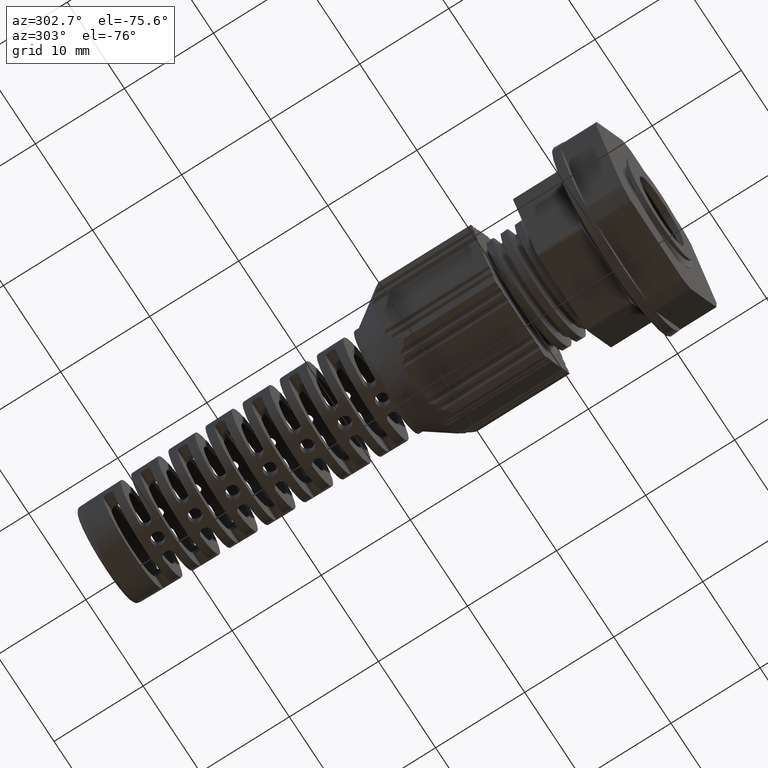
[diagram: clean part render]
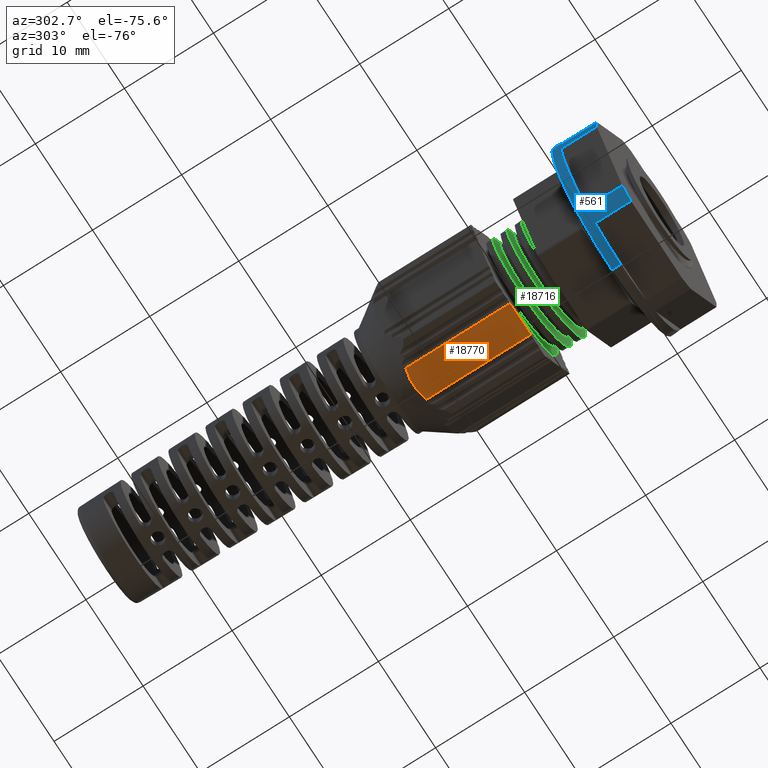
[diagram: same view with three faces highlighted in distinct colors, each labeled with its STEP entity id]
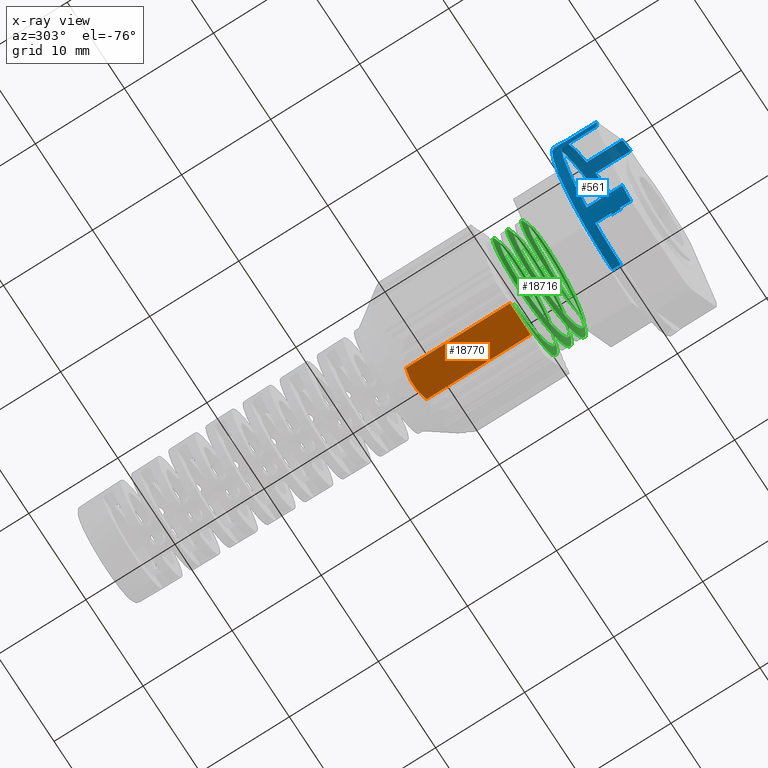
[diagram: x-ray of the same camera — body ghosted, the three highlighted faces saturated]
A machine part, auxiliary view with three faces highlighted in distinct colors.
The next image is the same camera in x-ray (body ghosted, the three faces saturated) — at least one of them is partly hidden behind the body in this view.
Their STEP definitions:

[orange] entity #18770 — the highlighted planar face has unit normal (0, 0, -1).
#89 = ORIENTED_EDGE ( 'NONE', *, *, #18681, .F. ) ;
#1162 = VERTEX_POINT ( 'NONE', #8406 ) ;
#1180 = VERTEX_POINT ( 'NONE', #8395 ) ;
#1183 = VERTEX_POINT ( 'NONE', #8409 ) ;
#1197 = VERTEX_POINT ( 'NONE', #8434 ) ;
#1203 = VERTEX_POINT ( 'NONE', #8469 ) ;
#1206 = VERTEX_POINT ( 'NONE', #8416 ) ;
#2070 = EDGE_LOOP ( 'NONE', ( #11971, #89, #11972, #19106, #11955, #19103 ) ) ;
#5319 = EDGE_CURVE ( 'NONE', #1206, #1203, #8913, .T. ) ;
#8395 = CARTESIAN_POINT ( 'NONE',  ( -1.808929889471766700, 12.91836690530706700, -7.500001119820728600 ) ) ;
#8406 = CARTESIAN_POINT ( 'NONE',  ( -1.809179411989011200, 1.733408865910367500, -7.500000497725707800 ) ) ;
#8409 = CARTESIAN_POINT ( 'NONE',  ( 1.809179412047081000, 1.733404800287774400, -7.500001990902817700 ) ) ;
#8416 = CARTESIAN_POINT ( 'NONE',  ( 1.809201712634430000, 1.233406263977599600, -7.500001989908184900 ) ) ;
#8434 = CARTESIAN_POINT ( 'NONE',  ( 1.808929835465607800, 12.91836692362644200, -7.500001119784929700 ) ) ;
#8469 = CARTESIAN_POINT ( 'NONE',  ( -1.809201712503602800, 1.233406263480285600, -7.500000994954100400 ) ) ;
#8913 = LINE ( 'NONE', #8935, #18016 ) ;
#8933 = DIRECTION ( 'NONE',  ( -1.000000000000000000, 0.0000000000000000000, -2.003086131649546900E-016 ) ) ;
#8935 = CARTESIAN_POINT ( 'NONE',  ( -4.330127018922188300, 1.233406263480285600, -7.500000000000000000 ) ) ;
#10750 = B_SPLINE_CURVE_WITH_KNOTS ( 'NONE', 3,
 ( #12922, #12965, #12976, #12973 ),
 .UNSPECIFIED., .F., .F.,
 ( 4, 4 ),
 ( 0.0000000000000000000, 1.000000000000000000 ),
 .UNSPECIFIED. ) ;
#10766 = B_SPLINE_CURVE_WITH_KNOTS ( 'NONE', 3,
 ( #14050, #14073, #14076, #14040, #14060, #14046 ),
 .UNSPECIFIED., .F., .F.,
 ( 4, 2, 4 ),
 ( 2.436387926220048300E-011, 0.001833991576412653400, 0.003667983128461427800 ),
 .UNSPECIFIED. ) ;
#11955 = ORIENTED_EDGE ( 'NONE', *, *, #5319, .T. ) ;
#11971 = ORIENTED_EDGE ( 'NONE', *, *, #18589, .T. ) ;
#11972 = ORIENTED_EDGE ( 'NONE', *, *, #18625, .T. ) ;
#12922 = CARTESIAN_POINT ( 'NONE',  ( 1.809201712634430000, 1.233406263977599600, -7.500001989908184900 ) ) ;
#12946 = LINE ( 'NONE', #12993, #13040 ) ;
#12965 = CARTESIAN_POINT ( 'NONE',  ( 1.809194279105348400, 1.400072442416115300, -7.500001990571273100 ) ) ;
#12973 = CARTESIAN_POINT ( 'NONE',  ( 1.809179412047081000, 1.733404800287774400, -7.500001990902817700 ) ) ;
#12976 = CARTESIAN_POINT ( 'NONE',  ( 1.809186845576214800, 1.566738621351944700, -7.500001990902817700 ) ) ;
#12983 = DIRECTION ( 'NONE',  ( 0.0000000000000000000, 1.000000000000000000, 0.0000000000000000000 ) ) ;
#12993 = CARTESIAN_POINT ( 'NONE',  ( -1.809179412047046400, 47.73795169273444100, -7.500000995451415500 ) ) ;
#13018 = VECTOR ( 'NONE', #13839, 1000.000000000000000 ) ;
#13040 = VECTOR ( 'NONE', #12983, 1000.000000000000000 ) ;
#13092 = VECTOR ( 'NONE', #13796, 1000.000000000000200 ) ;
#13234 = AXIS2_PLACEMENT_3D ( 'NONE', #14814, #14806, #14826 ) ;
#13755 = LINE ( 'NONE', #13757, #13018 ) ;
#13757 = CARTESIAN_POINT ( 'NONE',  ( 1.809179412047081000, 47.73795169273444100, -7.500000995451408400 ) ) ;
#13787 = LINE ( 'NONE', #13794, #13092 ) ;
#13794 = CARTESIAN_POINT ( 'NONE',  ( -1.809201712414850900, 1.233406263480285600, -7.499999999999999100 ) ) ;
#13796 = DIRECTION ( 'NONE',  ( 4.460073556472583500E-005, 0.9999999990053871600, 0.0000000000000000000 ) ) ;
#13839 = DIRECTION ( 'NONE',  ( -0.0000000000000000000, -1.000000000000000000, -0.0000000000000000000 ) ) ;
#14040 = CARTESIAN_POINT ( 'NONE',  ( -0.6187228311952591700, 13.22713231890776500, -7.499999999999997300 ) ) ;
#14046 = CARTESIAN_POINT ( 'NONE',  ( -1.808929889471766700, 12.91836690530706700, -7.500001119820728600 ) ) ;
#14050 = CARTESIAN_POINT ( 'NONE',  ( 1.808929835465607800, 12.91836692362644200, -7.500001119784929700 ) ) ;
#14060 = CARTESIAN_POINT ( 'NONE',  ( -1.222030187418772000, 13.11584815361887400, -7.500000000000000000 ) ) ;
#14073 = CARTESIAN_POINT ( 'NONE',  ( 1.222138014660427300, 13.11581201771485700, -7.500000459161998200 ) ) ;
#14076 = CARTESIAN_POINT ( 'NONE',  ( 0.6208922277658602800, 13.22687503655222600, -7.499999999999998200 ) ) ;
#14793 = FACE_OUTER_BOUND ( 'NONE', #2070, .T. ) ;
#14805 = PLANE ( 'NONE',  #13234 ) ;
#14806 = DIRECTION ( 'NONE',  ( 2.003086131649546900E-016, 0.0000000000000000000, -1.000000000000000000 ) ) ;
#14814 = CARTESIAN_POINT ( 'NONE',  ( -4.330127018922188300, 47.73795169273444100, -7.500000000000000000 ) ) ;
#14826 = DIRECTION ( 'NONE',  ( -1.000000000000000000, 0.0000000000000000000, -2.003086131649546900E-016 ) ) ;
#18016 = VECTOR ( 'NONE', #8933, 1000.000000000000000 ) ;
#18588 = EDGE_CURVE ( 'NONE', #1206, #1183, #10750, .T. ) ;
#18589 = EDGE_CURVE ( 'NONE', #1162, #1180, #12946, .T. ) ;
#18625 = EDGE_CURVE ( 'NONE', #1197, #1183, #13755, .T. ) ;
#18635 = EDGE_CURVE ( 'NONE', #1203, #1162, #13787, .T. ) ;
#18681 = EDGE_CURVE ( 'NONE', #1197, #1180, #10766, .T. ) ;
#18770 = ADVANCED_FACE ( 'NONE', ( #14793 ), #14805, .T. ) ;
#19103 = ORIENTED_EDGE ( 'NONE', *, *, #18635, .T. ) ;
#19106 = ORIENTED_EDGE ( 'NONE', *, *, #18588, .F. ) ;

[blue] entity #561 — the highlighted cylindrical surface (partial cylindrical patch) has radius 10.5 mm, axis along (0, 1, 0).
#561 = ADVANCED_FACE ( 'NONE', ( #5122 ), #5123, .T. ) ;
#2079 = EDGE_LOOP ( 'NONE', ( #19878, #19852, #19842, #19879, #19854, #19880, #19818, #19935, #19900, #19939, #19891, #19917, #19925, #19910, #19934, #19890 ) ) ;
#5122 = FACE_OUTER_BOUND ( 'NONE', #2079, .T. ) ;
#5123 = CYLINDRICAL_SURFACE ( 'NONE', #17299, 10.50000000000000000 ) ;
#5134 = CARTESIAN_POINT ( 'NONE',  ( 3.469446951953614200E-015, -10.06608847983449600, 0.0000000000000000000 ) ) ;
#5149 = DIRECTION ( 'NONE',  ( 0.0000000000000000000, 0.0000000000000000000, 1.000000000000000000 ) ) ;
#5153 = DIRECTION ( 'NONE',  ( 0.0000000000000000000, 1.000000000000000000, 0.0000000000000000000 ) ) ;
#10247 = VECTOR ( 'NONE', #11001, 1000.000000000000000 ) ;
#10337 = VECTOR ( 'NONE', #11159, 1000.000000000000000 ) ;
#10984 = LINE ( 'NONE', #10989, #10247 ) ;
#10989 = CARTESIAN_POINT ( 'NONE',  ( 4.755326091058335600E-015, -10.06608847983449600, -10.50000000000000000 ) ) ;
#11001 = DIRECTION ( 'NONE',  ( 0.0000000000000000000, 1.000000000000000000, 0.0000000000000000000 ) ) ;
#11143 = CARTESIAN_POINT ( 'NONE',  ( 3.469446951953614200E-015, -10.06608847983449600, 10.50000000000000000 ) ) ;
#11158 = LINE ( 'NONE', #11143, #10337 ) ;
#11159 = DIRECTION ( 'NONE',  ( 0.0000000000000000000, 1.000000000000000000, 0.0000000000000000000 ) ) ;
#13320 = CIRCLE ( 'NONE', #13348, 10.50000000000000000 ) ;
#13333 = AXIS2_PLACEMENT_3D ( 'NONE', #16006, #16022, #15987 ) ;
#13348 = AXIS2_PLACEMENT_3D ( 'NONE', #15521, #15554, #15564 ) ;
#13357 = CIRCLE ( 'NONE', #13333, 10.50000000000000000 ) ;
#13366 = AXIS2_PLACEMENT_3D ( 'NONE', #16198, #16170, #16188 ) ;
#13377 = VECTOR ( 'NONE', #16035, 1000.000000000000000 ) ;
#13392 = AXIS2_PLACEMENT_3D ( 'NONE', #16183, #16205, #16177 ) ;
#13393 = VECTOR ( 'NONE', #16283, 1000.000000000000000 ) ;
#13400 = CIRCLE ( 'NONE', #13411, 10.50000000000000000 ) ;
#13411 = AXIS2_PLACEMENT_3D ( 'NONE', #16160, #16147, #16126 ) ;
#13421 = CIRCLE ( 'NONE', #13366, 10.50000000000000000 ) ;
#13424 = CIRCLE ( 'NONE', #13392, 10.50000000000000000 ) ;
#13430 = CIRCLE ( 'NONE', #13462, 10.50000000000000000 ) ;
#13433 = VECTOR ( 'NONE', #16329, 1000.000000000000000 ) ;
#13434 = VECTOR ( 'NONE', #16319, 1000.000000000000000 ) ;
#13439 = AXIS2_PLACEMENT_3D ( 'NONE', #16351, #16321, #16346 ) ;
#13448 = VECTOR ( 'NONE', #16227, 1000.000000000000000 ) ;
#13457 = CIRCLE ( 'NONE', #13475, 10.50000000000000000 ) ;
#13460 = VECTOR ( 'NONE', #16434, 1000.000000000000000 ) ;
#13462 = AXIS2_PLACEMENT_3D ( 'NONE', #16265, #16297, #16280 ) ;
#13475 = AXIS2_PLACEMENT_3D ( 'NONE', #16334, #16338, #16315 ) ;
#13480 = CIRCLE ( 'NONE', #13439, 10.50000000000000000 ) ;
#15521 = CARTESIAN_POINT ( 'NONE',  ( 3.469446951953614200E-015, -10.06608847983449600, 0.0000000000000000000 ) ) ;
#15554 = DIRECTION ( 'NONE',  ( 0.0000000000000000000, 1.000000000000000000, 0.0000000000000000000 ) ) ;
#15564 = DIRECTION ( 'NONE',  ( 0.0000000000000000000, 0.0000000000000000000, 1.000000000000000000 ) ) ;
#15987 = DIRECTION ( 'NONE',  ( 0.0000000000000000000, 0.0000000000000000000, 1.000000000000000000 ) ) ;
#16006 = CARTESIAN_POINT ( 'NONE',  ( 3.469446951953614200E-015, -9.066088479834494500, 0.0000000000000000000 ) ) ;
#16022 = DIRECTION ( 'NONE',  ( 0.0000000000000000000, 1.000000000000000000, 0.0000000000000000000 ) ) ;
#16024 = LINE ( 'NONE', #16043, #13377 ) ;
#16035 = DIRECTION ( 'NONE',  ( -0.0000000000000000000, -1.000000000000000000, -0.0000000000000000000 ) ) ;
#16043 = CARTESIAN_POINT ( 'NONE',  ( -4.472135954999539600, -10.06608847983449600, -9.500000000000017800 ) ) ;
#16126 = DIRECTION ( 'NONE',  ( 0.0000000000000000000, 0.0000000000000000000, 1.000000000000000000 ) ) ;
#16147 = DIRECTION ( 'NONE',  ( 0.0000000000000000000, 1.000000000000000000, 0.0000000000000000000 ) ) ;
#16160 = CARTESIAN_POINT ( 'NONE',  ( 3.469446951953614200E-015, -10.06608847983449600, 0.0000000000000000000 ) ) ;
#16170 = DIRECTION ( 'NONE',  ( 0.0000000000000000000, 1.000000000000000000, 0.0000000000000000000 ) ) ;
#16177 = DIRECTION ( 'NONE',  ( 0.0000000000000000000, 0.0000000000000000000, 1.000000000000000000 ) ) ;
#16183 = CARTESIAN_POINT ( 'NONE',  ( 3.469446951953614200E-015, -10.06608847983449600, 0.0000000000000000000 ) ) ;
#16188 = DIRECTION ( 'NONE',  ( 0.0000000000000000000, 0.0000000000000000000, 1.000000000000000000 ) ) ;
#16198 = CARTESIAN_POINT ( 'NONE',  ( 3.469446951953614200E-015, -10.06608847983449600, 0.0000000000000000000 ) ) ;
#16205 = DIRECTION ( 'NONE',  ( 0.0000000000000000000, 1.000000000000000000, 0.0000000000000000000 ) ) ;
#16224 = LINE ( 'NONE', #16243, #13448 ) ;
#16227 = DIRECTION ( 'NONE',  ( -0.0000000000000000000, -1.000000000000000000, -0.0000000000000000000 ) ) ;
#16243 = CARTESIAN_POINT ( 'NONE',  ( -5.991173358452397400, -10.06608847983449600, 8.622983346207401900 ) ) ;
#16265 = CARTESIAN_POINT ( 'NONE',  ( 3.469446951953614200E-015, -14.06608847983449600, 0.0000000000000000000 ) ) ;
#16275 = CARTESIAN_POINT ( 'NONE',  ( -10.46330931345195500, -10.06608847983449600, -0.8770166537925892000 ) ) ;
#16280 = DIRECTION ( 'NONE',  ( 0.0000000000000000000, 0.0000000000000000000, 1.000000000000000000 ) ) ;
#16283 = DIRECTION ( 'NONE',  ( -0.0000000000000000000, -1.000000000000000000, -0.0000000000000000000 ) ) ;
#16297 = DIRECTION ( 'NONE',  ( -0.0000000000000000000, -1.000000000000000000, -0.0000000000000000000 ) ) ;
#16310 = LINE ( 'NONE', #16275, #13393 ) ;
#16315 = DIRECTION ( 'NONE',  ( 8.881784197001252300E-016, 0.0000000000000000000, 1.000000000000000000 ) ) ;
#16319 = DIRECTION ( 'NONE',  ( 0.0000000000000000000, 1.000000000000000000, 0.0000000000000000000 ) ) ;
#16321 = DIRECTION ( 'NONE',  ( -0.0000000000000000000, -1.000000000000000000, -0.0000000000000000000 ) ) ;
#16329 = DIRECTION ( 'NONE',  ( 0.0000000000000000000, 1.000000000000000000, 0.0000000000000000000 ) ) ;
#16334 = CARTESIAN_POINT ( 'NONE',  ( 3.469446951953614200E-015, -14.06608847983449600, 0.0000000000000000000 ) ) ;
#16337 = LINE ( 'NONE', #16343, #13433 ) ;
#16338 = DIRECTION ( 'NONE',  ( -0.0000000000000000000, -1.000000000000000000, -0.0000000000000000000 ) ) ;
#16343 = CARTESIAN_POINT ( 'NONE',  ( -10.46330931345195100, -10.06608847983449600, 0.8770166537926132900 ) ) ;
#16344 = LINE ( 'NONE', #16355, #13434 ) ;
#16346 = DIRECTION ( 'NONE',  ( 0.0000000000000000000, 0.0000000000000000000, 1.000000000000000000 ) ) ;
#16351 = CARTESIAN_POINT ( 'NONE',  ( 3.469446951953614200E-015, -14.06608847983449600, 0.0000000000000000000 ) ) ;
#16355 = CARTESIAN_POINT ( 'NONE',  ( -5.991173358452360100, -10.06608847983449600, -8.622983346207426800 ) ) ;
#16434 = DIRECTION ( 'NONE',  ( 0.0000000000000000000, 1.000000000000000000, 0.0000000000000000000 ) ) ;
#16439 = CARTESIAN_POINT ( 'NONE',  ( -4.472135954999544100, -10.06608847983449600, 9.500000000000016000 ) ) ;
#16453 = LINE ( 'NONE', #16439, #13460 ) ;
#16481 = CARTESIAN_POINT ( 'NONE',  ( -10.46330931345195100, -14.06608847983449600, 0.8770166537926155100 ) ) ;
#16738 = CARTESIAN_POINT ( 'NONE',  ( 3.469446951953614200E-015, -10.06608847983449600, 10.50000000000000000 ) ) ;
#16745 = CARTESIAN_POINT ( 'NONE',  ( -4.472135954999541400, -10.06608847983449600, -9.500000000000016000 ) ) ;
#16789 = CARTESIAN_POINT ( 'NONE',  ( -10.46330931345194900, -10.06608847983449600, 0.8770166537926205000 ) ) ;
#16803 = CARTESIAN_POINT ( 'NONE',  ( -5.991173358452364500, -10.06608847983449600, -8.622983346207425000 ) ) ;
#16818 = CARTESIAN_POINT ( 'NONE',  ( -10.46330931345195500, -14.06608847983449600, -0.8770166537925866400 ) ) ;
#16823 = CARTESIAN_POINT ( 'NONE',  ( -5.991173358452400100, -10.06608847983449600, 8.622983346207400100 ) ) ;
#16825 = CARTESIAN_POINT ( 'NONE',  ( 4.755326091058335600E-015, -9.066088479834494500, -10.50000000000000000 ) ) ;
#16827 = CARTESIAN_POINT ( 'NONE',  ( -5.991173358452359200, -14.06608847983449600, -8.622983346207428600 ) ) ;
#16829 = CARTESIAN_POINT ( 'NONE',  ( -4.472135954999544100, -10.06608847983449600, 9.500000000000016000 ) ) ;
#16836 = CARTESIAN_POINT ( 'NONE',  ( -10.46330931345195300, -10.06608847983449600, -0.8770166537925886400 ) ) ;
#16859 = CARTESIAN_POINT ( 'NONE',  ( 3.469446951953614200E-015, -9.066088479834494500, 10.50000000000000000 ) ) ;
#16864 = CARTESIAN_POINT ( 'NONE',  ( 4.755326091058335600E-015, -10.06608847983449600, -10.50000000000000000 ) ) ;
#16865 = CARTESIAN_POINT ( 'NONE',  ( -4.472135954999541400, -14.06608847983449600, -9.500000000000016000 ) ) ;
#16871 = CARTESIAN_POINT ( 'NONE',  ( -5.991173358452396500, -14.06608847983449600, 8.622983346207403700 ) ) ;
#16890 = CARTESIAN_POINT ( 'NONE',  ( -4.472135954999544100, -14.06608847983449600, 9.500000000000016000 ) ) ;
#17299 = AXIS2_PLACEMENT_3D ( 'NONE', #5134, #5153, #5149 ) ;
#17589 = EDGE_CURVE ( 'NONE', #20477, #20423, #10984, .T. ) ;
#17627 = EDGE_CURVE ( 'NONE', #20388, #20487, #11158, .T. ) ;
#18870 = EDGE_CURVE ( 'NONE', #20418, #20436, #13320, .T. ) ;
#18922 = EDGE_CURVE ( 'NONE', #20423, #20487, #13357, .T. ) ;
#18939 = EDGE_CURVE ( 'NONE', #20411, #20505, #16024, .T. ) ;
#18959 = EDGE_CURVE ( 'NONE', #20443, #20388, #13400, .T. ) ;
#18966 = EDGE_CURVE ( 'NONE', #20477, #20411, #13421, .T. ) ;
#18971 = EDGE_CURVE ( 'NONE', #20426, #20416, #13424, .T. ) ;
#18984 = EDGE_CURVE ( 'NONE', #20416, #20482, #16224, .T. ) ;
#18990 = EDGE_CURVE ( 'NONE', #20436, #20469, #16310, .T. ) ;
#19000 = EDGE_CURVE ( 'NONE', #20414, #20505, #13430, .T. ) ;
#19003 = EDGE_CURVE ( 'NONE', #19140, #20469, #13480, .T. ) ;
#19006 = EDGE_CURVE ( 'NONE', #19140, #20426, #16337, .T. ) ;
#19007 = EDGE_CURVE ( 'NONE', #20484, #20482, #13457, .T. ) ;
#19008 = EDGE_CURVE ( 'NONE', #20414, #20418, #16344, .T. ) ;
#19029 = EDGE_CURVE ( 'NONE', #20484, #20443, #16453, .T. ) ;
#19140 = VERTEX_POINT ( 'NONE', #16481 ) ;
#19818 = ORIENTED_EDGE ( 'NONE', *, *, #18990, .T. ) ;
#19842 = ORIENTED_EDGE ( 'NONE', *, *, #18939, .T. ) ;
#19852 = ORIENTED_EDGE ( 'NONE', *, *, #18966, .T. ) ;
#19854 = ORIENTED_EDGE ( 'NONE', *, *, #19008, .T. ) ;
#19878 = ORIENTED_EDGE ( 'NONE', *, *, #17589, .F. ) ;
#19879 = ORIENTED_EDGE ( 'NONE', *, *, #19000, .F. ) ;
#19880 = ORIENTED_EDGE ( 'NONE', *, *, #18870, .T. ) ;
#19890 = ORIENTED_EDGE ( 'NONE', *, *, #18922, .F. ) ;
#19891 = ORIENTED_EDGE ( 'NONE', *, *, #18984, .T. ) ;
#19900 = ORIENTED_EDGE ( 'NONE', *, *, #19006, .T. ) ;
#19910 = ORIENTED_EDGE ( 'NONE', *, *, #18959, .T. ) ;
#19917 = ORIENTED_EDGE ( 'NONE', *, *, #19007, .F. ) ;
#19925 = ORIENTED_EDGE ( 'NONE', *, *, #19029, .T. ) ;
#19934 = ORIENTED_EDGE ( 'NONE', *, *, #17627, .T. ) ;
#19935 = ORIENTED_EDGE ( 'NONE', *, *, #19003, .F. ) ;
#19939 = ORIENTED_EDGE ( 'NONE', *, *, #18971, .T. ) ;
#20388 = VERTEX_POINT ( 'NONE', #16738 ) ;
#20411 = VERTEX_POINT ( 'NONE', #16745 ) ;
#20414 = VERTEX_POINT ( 'NONE', #16827 ) ;
#20416 = VERTEX_POINT ( 'NONE', #16823 ) ;
#20418 = VERTEX_POINT ( 'NONE', #16803 ) ;
#20423 = VERTEX_POINT ( 'NONE', #16825 ) ;
#20426 = VERTEX_POINT ( 'NONE', #16789 ) ;
#20436 = VERTEX_POINT ( 'NONE', #16836 ) ;
#20443 = VERTEX_POINT ( 'NONE', #16829 ) ;
#20469 = VERTEX_POINT ( 'NONE', #16818 ) ;
#20477 = VERTEX_POINT ( 'NONE', #16864 ) ;
#20482 = VERTEX_POINT ( 'NONE', #16871 ) ;
#20484 = VERTEX_POINT ( 'NONE', #16890 ) ;
#20487 = VERTEX_POINT ( 'NONE', #16859 ) ;
#20505 = VERTEX_POINT ( 'NONE', #16865 ) ;

[green] entity #18716 — the highlighted face is a freeform B-spline surface patch.
#1144 = VERTEX_POINT ( 'NONE', #8363 ) ;
#1156 = VERTEX_POINT ( 'NONE', #8392 ) ;
#1195 = VERTEX_POINT ( 'NONE', #8430 ) ;
#2263 = EDGE_LOOP ( 'NONE', ( #3815, #3832, #3814, #3823, #3835, #3828, #3821, #3844, #3810, #3795 ) ) ;
#3795 = ORIENTED_EDGE ( 'NONE', *, *, #18651, .T. ) ;
#3810 = ORIENTED_EDGE ( 'NONE', *, *, #18599, .F. ) ;
#3814 = ORIENTED_EDGE ( 'NONE', *, *, #17580, .F. ) ;
#3815 = ORIENTED_EDGE ( 'NONE', *, *, #18608, .F. ) ;
#3821 = ORIENTED_EDGE ( 'NONE', *, *, #17585, .F. ) ;
#3823 = ORIENTED_EDGE ( 'NONE', *, *, #17719, .F. ) ;
#3828 = ORIENTED_EDGE ( 'NONE', *, *, #17577, .F. ) ;
#3832 = ORIENTED_EDGE ( 'NONE', *, *, #18513, .F. ) ;
#3835 = ORIENTED_EDGE ( 'NONE', *, *, #17591, .F. ) ;
#3844 = ORIENTED_EDGE ( 'NONE', *, *, #17538, .F. ) ;
#8363 = CARTESIAN_POINT ( 'NONE',  ( 3.871792064870504600, -3.466593736519714600, -4.939629187787073100 ) ) ;
#8392 = CARTESIAN_POINT ( 'NONE',  ( -1.213182174467993600, 1.233406263480631100, -5.313255970829629900 ) ) ;
#8430 = CARTESIAN_POINT ( 'NONE',  ( 5.489578687671993000, 1.233406263480314700, -3.042241959195484600 ) ) ;
#10115 = CARTESIAN_POINT ( 'NONE',  ( -2.723343350254262800E-013, 0.3771562655286569400, 5.450000000000660100 ) ) ;
#10116 = CARTESIAN_POINT ( 'NONE',  ( 5.449999999996719200, 0.7771562655272600300, -3.747098292138625200E-012 ) ) ;
#10119 = CARTESIAN_POINT ( 'NONE',  ( -1.028488958621506200E-012, 1.177156265528714200, -5.450000000000657400 ) ) ;
#10121 = CARTESIAN_POINT ( 'NONE',  ( 3.853731957467014400, 0.5771562655272602900, 3.853731957461715500 ) ) ;
#10125 = CARTESIAN_POINT ( 'NONE',  ( 5.449999999995167600, 0.8771562655272602300, -2.257463914935753400 ) ) ;
#10133 = CARTESIAN_POINT ( 'NONE',  ( 3.853731957461715500, 0.9771562655272606500, -3.853731957467015200 ) ) ;
#10143 = CARTESIAN_POINT ( 'NONE',  ( 2.257463914934120000, 0.4771562655271576200, 5.449999999996802700 ) ) ;
#10153 = CARTESIAN_POINT ( 'NONE',  ( 5.449999999998270900, 0.6771562655272607100, 2.257463914928259400 ) ) ;
#10160 = CARTESIAN_POINT ( 'NONE',  ( 2.257463914928684400, 1.077156265527233500, -5.449999999997847200 ) ) ;
#10751 = B_SPLINE_CURVE_WITH_KNOTS ( 'NONE', 3,
 ( #12674, #12696, #12689, #12693, #12688, #12665, #12662, #12706, #12691, #12675 ),
 .UNSPECIFIED., .F., .F.,
 ( 4, 2, 2, 2, 4 ),
 ( 4.006856853386554700E-016, 0.001866126005744496100, 0.003732252011488591500, 0.005598378017232686800, 0.007464504022976782200 ),
 .UNSPECIFIED. ) ;
#10755 = B_SPLINE_CURVE_WITH_KNOTS ( 'NONE', 3,
 ( #13918, #13907, #13913, #13908, #13923, #13925, #13895, #13915, #13899, #13919, #13911, #13926 ),
 .UNSPECIFIED., .F., .F.,
 ( 4, 2, 2, 2, 2, 4 ),
 ( 1.791685997810713400E-016, 0.001889381679383765000, 0.002834072519075558100, 0.003778763358767351000, 0.005668145038150939300, 0.007557526717534526800 ),
 .UNSPECIFIED. ) ;
#10886 = CARTESIAN_POINT ( 'NONE',  ( 2.450331116587708400E-012, -0.4228437344714399100, -5.450000000000657400 ) ) ;
#10891 = CARTESIAN_POINT ( 'NONE',  ( 2.257463914931470100, -0.5228437344729423000, -5.449999999995055700 ) ) ;
#10892 = CARTESIAN_POINT ( 'NONE',  ( 3.853731957461711000, -0.6228437344727408800, -3.853731957467014800 ) ) ;
#10925 = CARTESIAN_POINT ( 'NONE',  ( -3.853731957461660400, -3.022843734472754100, 3.853731957467014400 ) ) ;
#10926 = CARTESIAN_POINT ( 'NONE',  ( -2.257463914932547100, -0.3228437344729490600, -5.449999999998364200 ) ) ;
#10930 = CARTESIAN_POINT ( 'NONE',  ( -3.853731957467014400, -3.422843734472754500, -3.853731957461660400 ) ) ;
#10932 = CARTESIAN_POINT ( 'NONE',  ( 3.853731957467013900, -1.022843734472741000, 3.853731957461711000 ) ) ;
#10933 = CARTESIAN_POINT ( 'NONE',  ( -5.449999999996680200, -3.222843734472754700, 3.786549887720714000E-012 ) ) ;
#10936 = CARTESIAN_POINT ( 'NONE',  ( -5.449999999995141800, 0.07715626552725302100, 2.257463914935769400 ) ) ;
#10937 = CARTESIAN_POINT ( 'NONE',  ( -2.257463914929878500, 0.2771562655271501100, 5.449999999996616200 ) ) ;
#10939 = CARTESIAN_POINT ( 'NONE',  ( -3.853731957461687500, 0.1771562655272528300, 3.853731957467014400 ) ) ;
#10941 = CARTESIAN_POINT ( 'NONE',  ( 2.257463914935130300, -1.122843734472780900, 5.449999999995791100 ) ) ;
#10942 = CARTESIAN_POINT ( 'NONE',  ( -5.449999999995113400, -3.122843734472754700, 2.257463914935780500 ) ) ;
#10945 = CARTESIAN_POINT ( 'NONE',  ( -3.120593273463933200, -3.466593736519715500, -4.468153715083586200 ) ) ;
#10952 = CARTESIAN_POINT ( 'NONE',  ( -3.853731957467014400, -0.2228437344727469400, -3.853731957461687500 ) ) ;
#10953 = CARTESIAN_POINT ( 'NONE',  ( 2.450331116587708400E-012, -0.4228437344714399100, -5.450000000000657400 ) ) ;
#10956 = CARTESIAN_POINT ( 'NONE',  ( 5.449999999995164000, -0.7228437344727404200, -2.257463914935756000 ) ) ;
#10957 = CARTESIAN_POINT ( 'NONE',  ( -3.514227176101668800, -3.444112391886142300, -4.193236738827478900 ) ) ;
#10959 = CARTESIAN_POINT ( 'NONE',  ( 5.390198678189174300E-013, -1.222843734471307500, 5.450000000000659200 ) ) ;
#10962 = CARTESIAN_POINT ( 'NONE',  ( -5.449999999998250500, -3.322843734472755300, -2.257463914928206500 ) ) ;
#10963 = CARTESIAN_POINT ( 'NONE',  ( -1.067016876167466300E-012, -2.822843734471379000, 5.450000000000659200 ) ) ;
#10965 = CARTESIAN_POINT ( 'NONE',  ( 5.449999999996716600, -0.8228437344727409500, -3.749844059200820800E-012 ) ) ;
#10966 = CARTESIAN_POINT ( 'NONE',  ( -2.257463914930864400, -2.922843734472919700, 5.449999999995593000 ) ) ;
#10969 = CARTESIAN_POINT ( 'NONE',  ( 5.449999999998270900, -0.9228437344727409300, 2.257463914928254500 ) ) ;
#10970 = CARTESIAN_POINT ( 'NONE',  ( -2.723343350254262800E-013, 0.3771562655286569400, 5.450000000000660100 ) ) ;
#10973 = CARTESIAN_POINT ( 'NONE',  ( -5.449999999996699700, -0.02284373447274727300, 3.767349526468085900E-012 ) ) ;
#10974 = CARTESIAN_POINT ( 'NONE',  ( -5.449999999998262000, -0.1228437344727471200, -2.257463914928233200 ) ) ;
#10990 = CARTESIAN_POINT ( 'NONE',  ( -2.257463914928870000, -1.322843734472786100, 5.449999999997629600 ) ) ;
#10996 = CARTESIAN_POINT ( 'NONE',  ( -3.853731957461691100, -1.422843734472746000, 3.853731957467014400 ) ) ;
#11002 = CARTESIAN_POINT ( 'NONE',  ( 5.390198678189174300E-013, -1.222843734471307500, 5.450000000000659200 ) ) ;
#11012 = CARTESIAN_POINT ( 'NONE',  ( -5.449999999996702400, -1.622843734472746200, 3.764753617373377100E-012 ) ) ;
#11015 = CARTESIAN_POINT ( 'NONE',  ( -5.449999999998262000, -1.722843734472746700, -2.257463914928237200 ) ) ;
#11016 = CARTESIAN_POINT ( 'NONE',  ( -2.257463914934043600, -1.922843734472854400, -5.449999999996867600 ) ) ;
#11017 = CARTESIAN_POINT ( 'NONE',  ( 4.664033740163742500E-013, -2.022843734471352100, -5.450000000000657400 ) ) ;
#11019 = CARTESIAN_POINT ( 'NONE',  ( -5.449999999995143600, -1.522843734472746300, 2.257463914935767600 ) ) ;
#11020 = CARTESIAN_POINT ( 'NONE',  ( -3.853731957467014400, -1.822843734472746800, -3.853731957461691100 ) ) ;
#11531 = CARTESIAN_POINT ( 'NONE',  ( 5.449999999995162300, -2.322843734472742000, -2.257463914935756500 ) ) ;
#11535 = CARTESIAN_POINT ( 'NONE',  ( -1.067016876167466300E-012, -2.822843734471379000, 5.450000000000659200 ) ) ;
#11545 = CARTESIAN_POINT ( 'NONE',  ( 5.449999999996715700, -2.422843734472741600, -3.751357596288912500E-012 ) ) ;
#11548 = CARTESIAN_POINT ( 'NONE',  ( 3.853731957467014400, -2.622843734472742200, 3.853731957461709300 ) ) ;
#11556 = CARTESIAN_POINT ( 'NONE',  ( 2.257463914933114600, -2.722843734472908400, 5.449999999997805500 ) ) ;
#11563 = CARTESIAN_POINT ( 'NONE',  ( 4.664033740163742500E-013, -2.022843734471352100, -5.450000000000657400 ) ) ;
#11565 = CARTESIAN_POINT ( 'NONE',  ( 5.449999999998270000, -2.522843734472740800, 2.257463914928253200 ) ) ;
#11572 = CARTESIAN_POINT ( 'NONE',  ( 2.257463914929974000, -2.122843734472849700, -5.449999999996550500 ) ) ;
#11577 = CARTESIAN_POINT ( 'NONE',  ( 3.853731957461709300, -2.222843734472742300, -3.853731957467015200 ) ) ;
#12662 = CARTESIAN_POINT ( 'NONE',  ( 1.539617582840250500, -3.466593736519717300, -5.829736114463650600 ) ) ;
#12665 = CARTESIAN_POINT ( 'NONE',  ( 0.9180761378612578600, -3.466593736519716800, -5.892144956271256000 ) ) ;
#12674 = CARTESIAN_POINT ( 'NONE',  ( -3.120593273463933200, -3.466593736519715500, -4.468153715083586200 ) ) ;
#12675 = CARTESIAN_POINT ( 'NONE',  ( 3.871792064870504600, -3.466593736519714600, -4.939629187787073100 ) ) ;
#12688 = CARTESIAN_POINT ( 'NONE',  ( -0.3401500422393837800, -3.466593736519716400, -5.821319806257185400 ) ) ;
#12689 = CARTESIAN_POINT ( 'NONE',  ( -2.116153026904820300, -3.466593736519718100, -5.209932221715369000 ) ) ;
#12691 = CARTESIAN_POINT ( 'NONE',  ( 3.335537256134733400, -3.466593736519713300, -5.271667637113760700 ) ) ;
#12693 = CARTESIAN_POINT ( 'NONE',  ( -0.9480255621513756800, -3.466593736519715900, -5.685042748119160500 ) ) ;
#12696 = CARTESIAN_POINT ( 'NONE',  ( -2.645870413478239600, -3.466593736519686600, -4.883839622317445600 ) ) ;
#12706 = CARTESIAN_POINT ( 'NONE',  ( 2.759357727310336000, -3.466593736519717300, -5.517243683457202500 ) ) ;
#13625 = CARTESIAN_POINT ( 'NONE',  ( -1.028488958621506200E-012, 1.177156265528714200, -5.450000000000657400 ) ) ;
#13632 = CARTESIAN_POINT ( 'NONE',  ( -1.213182174467993600, 1.233406263480631100, -5.313255970829629900 ) ) ;
#13636 = CARTESIAN_POINT ( 'NONE',  ( -0.6142976501538873800, 1.204368113571246100, -5.449999999999477000 ) ) ;
#13652 = CARTESIAN_POINT ( 'NONE',  ( 3.871792064870504600, -3.466593736519714600, -4.939629187787073100 ) ) ;
#13675 = CARTESIAN_POINT ( 'NONE',  ( 5.905634918610857700, -0.6280996227970981900, 3.357463914933520100 ) ) ;
#13676 = CARTESIAN_POINT ( 'NONE',  ( 4.953731957466974500, -1.928099622797098300, -3.853731957467014800 ) ) ;
#13677 = CARTESIAN_POINT ( 'NONE',  ( -3.853731957467014400, -1.528099622797098400, -4.953731957466974500 ) ) ;
#13678 = CARTESIAN_POINT ( 'NONE',  ( 6.550000000000429700, -2.028099622797098400, -1.801828996323169500 ) ) ;
#13679 = CARTESIAN_POINT ( 'NONE',  ( 3.357463914933523700, -1.828099622797098500, -5.905634918610855000 ) ) ;
#13680 = CARTESIAN_POINT ( 'NONE',  ( 6.550000000000429700, -0.4280996227970983400, -1.801828996323169500 ) ) ;
#13681 = CARTESIAN_POINT ( 'NONE',  ( -5.905634918610855000, 0.1719003772029018300, -3.357463914933523700 ) ) ;
#13682 = CARTESIAN_POINT ( 'NONE',  ( 1.801828996323170000, -0.8280996227970985900, 6.550000000000429700 ) ) ;
#13683 = CARTESIAN_POINT ( 'NONE',  ( -6.550000000000428800, 0.3719003772029018700, 1.801828996323173700 ) ) ;
#13684 = CARTESIAN_POINT ( 'NONE',  ( 4.953731957466974500, -0.3280996227970982600, -3.853731957467014800 ) ) ;
#13685 = CARTESIAN_POINT ( 'NONE',  ( 0.7778174593051746500, -3.328099622797098300, -6.227817459305642300 ) ) ;
#13686 = CARTESIAN_POINT ( 'NONE',  ( -1.801828996323173700, -0.02809962279709836400, -6.550000000000428800 ) ) ;
#13687 = CARTESIAN_POINT ( 'NONE',  ( -4.953731957466975400, 0.4719003772029016800, 3.853731957467014400 ) ) ;
#13688 = CARTESIAN_POINT ( 'NONE',  ( -3.357463914933524100, -1.028099622797098400, 5.905634918610855000 ) ) ;
#13689 = CARTESIAN_POINT ( 'NONE',  ( -0.7778174593051751000, 0.6719003772029021900, 6.227817459305642300 ) ) ;
#13690 = CARTESIAN_POINT ( 'NONE',  ( 6.227817459305642300, -0.5280996227970983200, 0.7778174593051755400 ) ) ;
#13691 = CARTESIAN_POINT ( 'NONE',  ( -4.953731957466975400, -2.728099622797098600, 3.853731957467014400 ) ) ;
#13693 = CARTESIAN_POINT ( 'NONE',  ( -5.905634918610855000, -3.028099622797099800, -3.357463914933523700 ) ) ;
#13694 = CARTESIAN_POINT ( 'NONE',  ( -4.953731957466975400, -1.128099622797099000, 3.853731957467014400 ) ) ;
#13695 = CARTESIAN_POINT ( 'NONE',  ( 1.801828996323170000, 0.7719003772029021700, 6.550000000000429700 ) ) ;
#13697 = CARTESIAN_POINT ( 'NONE',  ( 0.7778174593051746500, -1.728099622797098200, -6.227817459305642300 ) ) ;
#13698 = CARTESIAN_POINT ( 'NONE',  ( 3.853731957467013900, 0.8719003772029018100, 4.953731957466975400 ) ) ;
#13699 = CARTESIAN_POINT ( 'NONE',  ( -6.227817459305642300, -1.328099622797098300, -0.7778174593051746500 ) ) ;
#13700 = CARTESIAN_POINT ( 'NONE',  ( -3.853731957467014400, -3.128099622797098100, -4.953731957466974500 ) ) ;
#13701 = CARTESIAN_POINT ( 'NONE',  ( -6.227817459305642300, -2.928099622797099700, -0.7778174593051746500 ) ) ;
#13702 = CARTESIAN_POINT ( 'NONE',  ( 6.227817459305642300, 1.071900377202901400, 0.7778174593051755400 ) ) ;
#13703 = CARTESIAN_POINT ( 'NONE',  ( -3.357463914933524100, -2.628099622797098500, 5.905634918610855000 ) ) ;
#13708 = CARTESIAN_POINT ( 'NONE',  ( 1.801828996323170000, -2.428099622797098300, 6.550000000000429700 ) ) ;
#13709 = CARTESIAN_POINT ( 'NONE',  ( -3.853731957467014400, 0.07190037720290190500, -4.953731957466974500 ) ) ;
#13711 = CARTESIAN_POINT ( 'NONE',  ( 2.503252975238835700, -3.394986134015295100, -6.012320798080753400 ) ) ;
#13712 = CARTESIAN_POINT ( 'NONE',  ( -1.801828996323173700, -3.228099622797098600, -6.550000000000428800 ) ) ;
#13715 = CARTESIAN_POINT ( 'NONE',  ( 6.227817459305642300, -2.128099622797098100, 0.7778174593051755400 ) ) ;
#13716 = CARTESIAN_POINT ( 'NONE',  ( -5.905634918610855000, -1.428099622797098800, -3.357463914933523700 ) ) ;
#13717 = CARTESIAN_POINT ( 'NONE',  ( 5.905634918610857700, -2.228099622797098600, 3.357463914933520100 ) ) ;
#13719 = CARTESIAN_POINT ( 'NONE',  ( 3.853731957467013900, -2.328099622797098300, 4.953731957466975400 ) ) ;
#13720 = CARTESIAN_POINT ( 'NONE',  ( -3.357463914933524100, 0.5719003772029018800, 5.905634918610855000 ) ) ;
#13721 = CARTESIAN_POINT ( 'NONE',  ( 5.489578687671993000, 1.233406263480314700, -3.042241959195484600 ) ) ;
#13722 = CARTESIAN_POINT ( 'NONE',  ( -1.801828996323173700, -1.628099622797098500, -6.550000000000428800 ) ) ;
#13724 = CARTESIAN_POINT ( 'NONE',  ( 0.7778174593051746500, -0.1280996227970981900, -6.227817459305642300 ) ) ;
#13725 = CARTESIAN_POINT ( 'NONE',  ( 3.853731957467013900, -0.7280996227970985000, 4.953731957466975400 ) ) ;
#13726 = CARTESIAN_POINT ( 'NONE',  ( -6.227817459305642300, 0.2719003772029015600, -0.7778174593051746500 ) ) ;
#13727 = CARTESIAN_POINT ( 'NONE',  ( -6.550000000000428800, -2.828099622797098300, 1.801828996323173700 ) ) ;
#13728 = CARTESIAN_POINT ( 'NONE',  ( 6.481398448974528200, 1.150607618483585800, -1.252551100714853100 ) ) ;
#13730 = CARTESIAN_POINT ( 'NONE',  ( -6.550000000000428800, -1.228099622797098600, 1.801828996323173700 ) ) ;
#13733 = CARTESIAN_POINT ( 'NONE',  ( 3.357463914933523700, -0.2280996227970984400, -5.905634918610855000 ) ) ;
#13734 = CARTESIAN_POINT ( 'NONE',  ( -0.7778174593051751000, -0.9280996227970981200, 6.227817459305642300 ) ) ;
#13735 = CARTESIAN_POINT ( 'NONE',  ( -0.7778174593051751000, -2.528099622797098400, 6.227817459305642300 ) ) ;
#13737 = CARTESIAN_POINT ( 'NONE',  ( 5.905634918610857700, 0.9719003772029022300, 3.357463914933520100 ) ) ;
#13895 = CARTESIAN_POINT ( 'NONE',  ( 2.214423929212611300, 1.233406263480282900, -5.400295891166682500 ) ) ;
#13899 = CARTESIAN_POINT ( 'NONE',  ( 3.672924999097641600, 1.233406263480283400, -4.793158079119210800 ) ) ;
#13907 = CARTESIAN_POINT ( 'NONE',  ( -0.6098912164579707300, 1.233406263481325400, -5.523234317051334900 ) ) ;
#13908 = CARTESIAN_POINT ( 'NONE',  ( 0.9702630036750029600, 1.233406263480284300, -5.613599907454131200 ) ) ;
#13911 = CARTESIAN_POINT ( 'NONE',  ( 5.121846933158612300, 1.233406263480283400, -3.563149779631234800 ) ) ;
#13913 = CARTESIAN_POINT ( 'NONE',  ( 0.01450663753198212400, 1.233406263480284500, -5.621174264941586800 ) ) ;
#13915 = CARTESIAN_POINT ( 'NONE',  ( 3.117299494373442200, 1.233406263480283100, -5.090192132163472200 ) ) ;
#13918 = CARTESIAN_POINT ( 'NONE',  ( -1.213182174467993600, 1.233406263480631100, -5.313255970829629900 ) ) ;
#13919 = CARTESIAN_POINT ( 'NONE',  ( 4.688139045583413100, 1.233406263480283600, -4.020564495081257100 ) ) ;
#13923 = CARTESIAN_POINT ( 'NONE',  ( 1.284818216835050600, 1.233406263480256900, -5.585275091192372100 ) ) ;
#13925 = CARTESIAN_POINT ( 'NONE',  ( 1.906158719362261100, 1.233406263480256700, -5.478885453139482400 ) ) ;
#13926 = CARTESIAN_POINT ( 'NONE',  ( 5.489578687671993000, 1.233406263480314700, -3.042241959195484600 ) ) ;
#14198 = CARTESIAN_POINT ( 'NONE',  ( -2.257463914933523200, -2.922843734471329800, 5.450000000000451400 ) ) ;
#14199 = CARTESIAN_POINT ( 'NONE',  ( -3.853731957466975300, -1.422843734471330100, 3.853731957467014400 ) ) ;
#14200 = CARTESIAN_POINT ( 'NONE',  ( 2.257463914933575100, -2.722843734471331400, 5.450000000000429200 ) ) ;
#14202 = CARTESIAN_POINT ( 'NONE',  ( -5.450000000000451400, -3.322843734471331100, -2.257463914933521400 ) ) ;
#14203 = CARTESIAN_POINT ( 'NONE',  ( -3.853731957466975300, -3.022843734471330400, 3.853731957467014400 ) ) ;
#14204 = CARTESIAN_POINT ( 'NONE',  ( -5.450000000000451400, -1.722843734471330500, -2.257463914933521400 ) ) ;
#14205 = CARTESIAN_POINT ( 'NONE',  ( -5.450000000000438900, -3.222843734471330500, 2.818925648462311500E-014 ) ) ;
#14206 = CARTESIAN_POINT ( 'NONE',  ( -2.818925648462311500E-014, -3.622843734471331300, -5.450000000000438900 ) ) ;
#14210 = CARTESIAN_POINT ( 'NONE',  ( 3.853731957466975300, -3.822843734471330200, -3.853731957467014800 ) ) ;
#14211 = CARTESIAN_POINT ( 'NONE',  ( -2.818925648462311500E-014, -2.022843734471329900, -5.450000000000438900 ) ) ;
#14212 = CARTESIAN_POINT ( 'NONE',  ( 2.257463914933575100, -1.122843734471330900, 5.450000000000429200 ) ) ;
#14213 = CARTESIAN_POINT ( 'NONE',  ( 5.450000000000452300, -2.522843734471330400, 2.257463914933520100 ) ) ;
#14214 = CARTESIAN_POINT ( 'NONE',  ( 5.450000000000452300, -0.9228437344713303900, 2.257463914933520100 ) ) ;
#14215 = CARTESIAN_POINT ( 'NONE',  ( 2.257463914933521400, -0.5228437344713303700, -5.450000000000451400 ) ) ;
#14217 = CARTESIAN_POINT ( 'NONE',  ( 2.775557561562891400E-014, -1.222843734471330100, 5.450000000000439800 ) ) ;
#14218 = CARTESIAN_POINT ( 'NONE',  ( 5.450000000000429200, -0.7228437344713301000, -2.257463914933574700 ) ) ;
#14221 = CARTESIAN_POINT ( 'NONE',  ( 2.257463914933521400, -3.722843734471330500, -5.450000000000451400 ) ) ;
#14222 = CARTESIAN_POINT ( 'NONE',  ( 3.853731957466975300, -0.6228437344713302300, -3.853731957467014800 ) ) ;
#14225 = CARTESIAN_POINT ( 'NONE',  ( -5.450000000000428300, -3.122843734471330500, 2.257463914933578700 ) ) ;
#14226 = CARTESIAN_POINT ( 'NONE',  ( 2.775557561562891400E-014, -2.822843734471330200, 5.450000000000439800 ) ) ;
#14227 = CARTESIAN_POINT ( 'NONE',  ( 3.853731957467013900, -2.622843734471330500, 3.853731957466975300 ) ) ;
#14228 = CARTESIAN_POINT ( 'NONE',  ( 2.257463914933521400, -2.122843734471330900, -5.450000000000451400 ) ) ;
#14229 = CARTESIAN_POINT ( 'NONE',  ( -2.257463914933578700, -1.922843734471330300, -5.450000000000428300 ) ) ;
#14230 = CARTESIAN_POINT ( 'NONE',  ( -3.853731957467014400, -3.422843734471330300, -3.853731957466975300 ) ) ;
#14231 = CARTESIAN_POINT ( 'NONE',  ( 5.450000000000438900, -2.422843734471330300, -2.732189474663471200E-014 ) ) ;
#14232 = CARTESIAN_POINT ( 'NONE',  ( 3.853731957467013900, -1.022843734471330400, 3.853731957466975300 ) ) ;
#14234 = CARTESIAN_POINT ( 'NONE',  ( 5.450000000000438900, -0.8228437344713303000, -2.732189474663471200E-014 ) ) ;
#14237 = FACE_OUTER_BOUND ( 'NONE', #2263, .T. ) ;
#14239 = CARTESIAN_POINT ( 'NONE',  ( -5.450000000000438900, -1.622843734471330200, 2.818925648462311500E-014 ) ) ;
#14240 = CARTESIAN_POINT ( 'NONE',  ( -2.257463914933578700, -3.522843734471332100, -5.450000000000428300 ) ) ;
#14244 = CARTESIAN_POINT ( 'NONE',  ( 5.450000000000429200, -2.322843734471330200, -2.257463914933574700 ) ) ;
#14245 = CARTESIAN_POINT ( 'NONE',  ( -5.450000000000428300, -1.522843734471330100, 2.257463914933578700 ) ) ;
#14246 = CARTESIAN_POINT ( 'NONE',  ( -2.257463914933523200, -1.322843734471330600, 5.450000000000451400 ) ) ;
#14249 = CARTESIAN_POINT ( 'NONE',  ( 3.853731957466975300, -2.222843734471330500, -3.853731957467014800 ) ) ;
#14251 = CARTESIAN_POINT ( 'NONE',  ( -3.853731957467014400, -1.822843734471330900, -3.853731957466975300 ) ) ;
#14252 = CARTESIAN_POINT ( 'NONE',  ( 5.450000000000438900, 2.377156265528670400, -2.732189474663471200E-014 ) ) ;
#14253 = CARTESIAN_POINT ( 'NONE',  ( 2.257463914933575100, 0.4771562655286696300, 5.450000000000429200 ) ) ;
#14254 = CARTESIAN_POINT ( 'NONE',  ( 3.853731957467013900, 0.5771562655286699400, 3.853731957466975300 ) ) ;
#14255 = CARTESIAN_POINT ( 'NONE',  ( 2.775557561562891400E-014, 0.3771562655286702600, 5.450000000000439800 ) ) ;
#14256 = CARTESIAN_POINT ( 'NONE',  ( 2.775557561562891400E-014, 3.577156265528671100, 5.450000000000439800 ) ) ;
#14257 = CARTESIAN_POINT ( 'NONE',  ( -2.818925648462311500E-014, 2.777156265528669500, -5.450000000000438900 ) ) ;
#14258 = CARTESIAN_POINT ( 'NONE',  ( -2.818925648462311500E-014, 1.177156265528669800, -5.450000000000438900 ) ) ;
#14259 = CARTESIAN_POINT ( 'NONE',  ( 3.853731957466975300, 2.577156265528670200, -3.853731957467014800 ) ) ;
#14260 = CARTESIAN_POINT ( 'NONE',  ( -3.853731957466975300, 3.377156265528670400, 3.853731957467014400 ) ) ;
#14261 = CARTESIAN_POINT ( 'NONE',  ( -5.450000000000428300, 3.277156265528670300, 2.257463914933578700 ) ) ;
#14262 = CARTESIAN_POINT ( 'NONE',  ( 5.450000000000429200, 4.077156265528670600, -2.257463914933574700 ) ) ;
#14263 = CARTESIAN_POINT ( 'NONE',  ( 2.257463914933575100, 2.077156265528669700, 5.450000000000429200 ) ) ;
#14264 = CARTESIAN_POINT ( 'NONE',  ( -5.450000000000438900, 4.777156265528669900, 2.818925648462311500E-014 ) ) ;
#14265 = CARTESIAN_POINT ( 'NONE',  ( -5.450000000000438900, 3.177156265528669800, 2.818925648462311500E-014 ) ) ;
#14266 = CARTESIAN_POINT ( 'NONE',  ( -2.257463914933523200, 5.077156265528669700, 5.450000000000451400 ) ) ;
#14267 = CARTESIAN_POINT ( 'NONE',  ( 2.775557561562891400E-014, 5.177156265528671100, 5.450000000000439800 ) ) ;
#14268 = CARTESIAN_POINT ( 'NONE',  ( 3.853731957467013900, 5.377156265528669500, 3.853731957466975300 ) ) ;
#14269 = CARTESIAN_POINT ( 'NONE',  ( -3.853731957466975300, 4.977156265528670100, 3.853731957467014400 ) ) ;
#14270 = CARTESIAN_POINT ( 'NONE',  ( 5.450000000000452300, 5.477156265528671000, 2.257463914933520100 ) ) ;
#14271 = CARTESIAN_POINT ( 'NONE',  ( 2.257463914933575100, 5.277156265528669900, 5.450000000000429200 ) ) ;
#14272 = CARTESIAN_POINT ( 'NONE',  ( 5.450000000000438900, 5.577156265528669700, -2.732189474663471200E-014 ) ) ;
#14273 = CARTESIAN_POINT ( 'NONE',  ( 3.853731957466975300, 5.777156265528670800, -3.853731957467014800 ) ) ;
#14274 = CARTESIAN_POINT ( 'NONE',  ( 5.450000000000429200, 2.477156265528671000, -2.257463914933574700 ) ) ;
#14275 = CARTESIAN_POINT ( 'NONE',  ( -5.450000000000451400, 1.477156265528670300, -2.257463914933521400 ) ) ;
#14276 = CARTESIAN_POINT ( 'NONE',  ( 3.853731957466975300, 4.177156265528669400, -3.853731957467014800 ) ) ;
#14277 = CARTESIAN_POINT ( 'NONE',  ( 3.853731957466975300, 0.9771562655286700800, -3.853731957467014800 ) ) ;
#14278 = CARTESIAN_POINT ( 'NONE',  ( -3.853731957467014400, 1.377156265528670200, -3.853731957466975300 ) ) ;
#14279 = CARTESIAN_POINT ( 'NONE',  ( -3.853731957467014400, -0.2228437344713300200, -3.853731957466975300 ) ) ;
#14280 = CARTESIAN_POINT ( 'NONE',  ( -3.853731957466975300, 1.777156265528670300, 3.853731957467014400 ) ) ;
#14281 = CARTESIAN_POINT ( 'NONE',  ( -3.853731957467014400, 2.977156265528670100, -3.853731957466975300 ) ) ;
#14282 = CARTESIAN_POINT ( 'NONE',  ( -2.818925648462311500E-014, -0.4228437344713301100, -5.450000000000438900 ) ) ;
#14283 = CARTESIAN_POINT ( 'NONE',  ( -5.450000000000438900, -0.02284373447133036500, 2.818925648462311500E-014 ) ) ;
#14284 = CARTESIAN_POINT ( 'NONE',  ( -2.257463914933578700, -0.3228437344713302500, -5.450000000000428300 ) ) ;
#14285 = CARTESIAN_POINT ( 'NONE',  ( 5.450000000000438900, 0.7771562655286695700, -2.732189474663471200E-014 ) ) ;
#14286 = CARTESIAN_POINT ( 'NONE',  ( -2.257463914933578700, 1.277156265528669900, -5.450000000000428300 ) ) ;
#14287 = CARTESIAN_POINT ( 'NONE',  ( 5.450000000000429200, 5.677156265528669400, -2.257463914933574700 ) ) ;
#14288 = CARTESIAN_POINT ( 'NONE',  ( 4.953731957466974500, -3.528099622797098400, -3.853731957467014800 ) ) ;
#14289 = CARTESIAN_POINT ( 'NONE',  ( -2.257463914933523200, 0.2771562655286699500, 5.450000000000451400 ) ) ;
#14290 = CARTESIAN_POINT ( 'NONE',  ( 5.450000000000438900, 3.977156265528670100, -2.732189474663471200E-014 ) ) ;
#14291 = CARTESIAN_POINT ( 'NONE',  ( -3.853731957466975300, 0.1771562655286697300, 3.853731957467014400 ) ) ;
#14292 = CARTESIAN_POINT ( 'NONE',  ( -2.257463914933578700, 2.877156265528670900, -5.450000000000428300 ) ) ;
#14293 = CARTESIAN_POINT ( 'NONE',  ( 2.257463914933521400, 4.277156265528669900, -5.450000000000451400 ) ) ;
#14294 = CARTESIAN_POINT ( 'NONE',  ( 5.450000000000429200, 0.8771562655286699900, -2.257463914933574700 ) ) ;
#14295 = CARTESIAN_POINT ( 'NONE',  ( -5.450000000000428300, 1.677156265528670300, 2.257463914933578700 ) ) ;
#14296 = CARTESIAN_POINT ( 'NONE',  ( -5.450000000000428300, 0.07715626552866992900, 2.257463914933578700 ) ) ;
#14297 = CARTESIAN_POINT ( 'NONE',  ( 5.450000000000452300, 0.6771562655286701400, 2.257463914933520100 ) ) ;
#14298 = CARTESIAN_POINT ( 'NONE',  ( -2.257463914933523200, 1.877156265528669800, 5.450000000000451400 ) ) ;
#14299 = CARTESIAN_POINT ( 'NONE',  ( 2.257463914933521400, 2.677156265528670300, -5.450000000000451400 ) ) ;
#14300 = CARTESIAN_POINT ( 'NONE',  ( 3.853731957467013900, 2.177156265528669800, 3.853731957466975300 ) ) ;
#14301 = CARTESIAN_POINT ( 'NONE',  ( -5.450000000000451400, 3.077156265528670600, -2.257463914933521400 ) ) ;
#14302 = CARTESIAN_POINT ( 'NONE',  ( 3.853731957467013900, 3.777156265528669500, 3.853731957466975300 ) ) ;
#14303 = CARTESIAN_POINT ( 'NONE',  ( 2.775557561562891400E-014, 1.977156265528670100, 5.450000000000439800 ) ) ;
#14304 = CARTESIAN_POINT ( 'NONE',  ( 5.450000000000452300, 2.277156265528669900, 2.257463914933520100 ) ) ;
#14305 = CARTESIAN_POINT ( 'NONE',  ( 2.257463914933575100, 3.677156265528670300, 5.450000000000429200 ) ) ;
#14306 = CARTESIAN_POINT ( 'NONE',  ( 5.450000000000452300, 3.877156265528670000, 2.257463914933520100 ) ) ;
#14307 = CARTESIAN_POINT ( 'NONE',  ( -2.818925648462311500E-014, 4.377156265528670400, -5.450000000000438900 ) ) ;
#14308 = CARTESIAN_POINT ( 'NONE',  ( -2.257463914933578700, 4.477156265528669200, -5.450000000000428300 ) ) ;
#14309 = CARTESIAN_POINT ( 'NONE',  ( 2.257463914933521400, 1.077156265528669700, -5.450000000000451400 ) ) ;
#14310 = CARTESIAN_POINT ( 'NONE',  ( -5.450000000000438900, 1.577156265528669900, 2.818925648462311500E-014 ) ) ;
#14311 = CARTESIAN_POINT ( 'NONE',  ( -3.853731957467014400, 4.577156265528670600, -3.853731957466975300 ) ) ;
#14312 = CARTESIAN_POINT ( 'NONE',  ( -5.450000000000451400, 4.677156265528669400, -2.257463914933521400 ) ) ;
#14313 = CARTESIAN_POINT ( 'NONE',  ( -5.450000000000428300, 4.877156265528671300, 2.257463914933578700 ) ) ;
#14314 = CARTESIAN_POINT ( 'NONE',  ( -5.450000000000451400, -0.1228437344713301900, -2.257463914933521400 ) ) ;
#14315 = CARTESIAN_POINT ( 'NONE',  ( -2.257463914933523200, 3.477156265528669600, 5.450000000000451400 ) ) ;
#14316 = CARTESIAN_POINT ( 'NONE',  ( -0.7778174593051751000, 2.271900377202901800, 6.227817459305642300 ) ) ;
#14317 = CARTESIAN_POINT ( 'NONE',  ( -3.357463914933524100, -2.628099622797098500, 5.905634918610855000 ) ) ;
#14318 = CARTESIAN_POINT ( 'NONE',  ( 1.801828996323170000, 2.371900377202901500, 6.550000000000429700 ) ) ;
#14319 = CARTESIAN_POINT ( 'NONE',  ( 3.853731957467013900, 2.471900377202901600, 4.953731957466975400 ) ) ;
#14320 = CARTESIAN_POINT ( 'NONE',  ( 5.905634918610857700, 2.571900377202902100, 3.357463914933520100 ) ) ;
#14321 = CARTESIAN_POINT ( 'NONE',  ( 3.357463914933523700, -3.428099622797098300, -5.905634918610855000 ) ) ;
#14322 = CARTESIAN_POINT ( 'NONE',  ( -6.550000000000428800, 0.3719003772029018700, 1.801828996323173700 ) ) ;
#14323 = CARTESIAN_POINT ( 'NONE',  ( 4.953731957466974500, -0.3280996227970982600, -3.853731957467014800 ) ) ;
#14324 = CARTESIAN_POINT ( 'NONE',  ( 4.953731957466974500, 1.271900377202902100, -3.853731957467014800 ) ) ;
#14325 = CARTESIAN_POINT ( 'NONE',  ( -3.357463914933524100, 2.171900377202901300, 5.905634918610855000 ) ) ;
#14326 = CARTESIAN_POINT ( 'NONE',  ( 6.227817459305642300, 2.671900377202902200, 0.7778174593051755400 ) ) ;
#14327 = CARTESIAN_POINT ( 'NONE',  ( -0.7778174593051751000, 0.6719003772029021900, 6.227817459305642300 ) ) ;
#14328 = CARTESIAN_POINT ( 'NONE',  ( 6.550000000000429700, 2.771900377202902300, -1.801828996323169500 ) ) ;
#14329 = CARTESIAN_POINT ( 'NONE',  ( -1.801828996323173700, -1.628099622797098300, -6.550000000000428800 ) ) ;
#14330 = CARTESIAN_POINT ( 'NONE',  ( 0.7778174593051746500, -0.1280996227970981900, -6.227817459305642300 ) ) ;
#14331 = CARTESIAN_POINT ( 'NONE',  ( 4.953731957466974500, 2.871900377202901900, -3.853731957467014800 ) ) ;
#14332 = CARTESIAN_POINT ( 'NONE',  ( 3.357463914933523700, -1.828099622797098000, -5.905634918610855000 ) ) ;
#14333 = CARTESIAN_POINT ( 'NONE',  ( -6.550000000000428800, -2.828099622797098300, 1.801828996323173700 ) ) ;
#14334 = CARTESIAN_POINT ( 'NONE',  ( 5.905634918610857700, -0.6280996227970981900, 3.357463914933520100 ) ) ;
#14335 = CARTESIAN_POINT ( 'NONE',  ( 1.801828996323170000, -0.8280996227970985900, 6.550000000000429700 ) ) ;
#14336 = CARTESIAN_POINT ( 'NONE',  ( -0.7778174593051751000, -2.528099622797098400, 6.227817459305642300 ) ) ;
#14337 = CARTESIAN_POINT ( 'NONE',  ( -3.853731957467014400, 0.07190037720290190500, -4.953731957466974500 ) ) ;
#14338 = CARTESIAN_POINT ( 'NONE',  ( -1.801828996323173700, -3.228099622797098600, -6.550000000000428800 ) ) ;
#14339 = CARTESIAN_POINT ( 'NONE',  ( -4.953731957466975400, 0.4719003772029016800, 3.853731957467014400 ) ) ;
#14340 = CARTESIAN_POINT ( 'NONE',  ( -3.357463914933524100, 0.5719003772029019900, 5.905634918610855000 ) ) ;
#14341 = CARTESIAN_POINT ( 'NONE',  ( 5.905634918610857700, 0.9719003772029020100, 3.357463914933520100 ) ) ;
#14342 = CARTESIAN_POINT ( 'NONE',  ( -1.801828996323173700, 1.571900377202901900, -6.550000000000428800 ) ) ;
#14343 = CARTESIAN_POINT ( 'NONE',  ( -6.227817459305642300, 1.871900377202901900, -0.7778174593051746500 ) ) ;
#14344 = CARTESIAN_POINT ( 'NONE',  ( 3.853731957467013900, -0.7280996227970985000, 4.953731957466975400 ) ) ;
#14345 = CARTESIAN_POINT ( 'NONE',  ( -5.905634918610855000, -3.028099622797099800, -3.357463914933523700 ) ) ;
#14346 = CARTESIAN_POINT ( 'NONE',  ( 3.357463914933523700, -0.2280996227970984400, -5.905634918610855000 ) ) ;
#14347 = CARTESIAN_POINT ( 'NONE',  ( -3.853731957467014400, -1.528099622797098400, -4.953731957466974500 ) ) ;
#14348 = CARTESIAN_POINT ( 'NONE',  ( -4.953731957466975400, -2.728099622797098600, 3.853731957467014400 ) ) ;
#14349 = CARTESIAN_POINT ( 'NONE',  ( -6.227817459305642300, -2.928099622797099700, -0.7778174593051746500 ) ) ;
#14350 = CARTESIAN_POINT ( 'NONE',  ( -3.853731957467014400, -3.128099622797098100, -4.953731957466974500 ) ) ;
#14351 = CARTESIAN_POINT ( 'NONE',  ( 5.905634918610857700, -2.228099622797098600, 3.357463914933520100 ) ) ;
#14352 = CARTESIAN_POINT ( 'NONE',  ( -5.905634918610855000, -1.428099622797098800, -3.357463914933523700 ) ) ;
#14353 = CARTESIAN_POINT ( 'NONE',  ( -0.7778174593051751000, -0.9280996227970981200, 6.227817459305642300 ) ) ;
#14354 = CARTESIAN_POINT ( 'NONE',  ( -1.801828996323173700, -0.02809962279709835700, -6.550000000000428800 ) ) ;
#14355 = CARTESIAN_POINT ( 'NONE',  ( -6.227817459305642300, 0.2719003772029015600, -0.7778174593051746500 ) ) ;
#14356 = CARTESIAN_POINT ( 'NONE',  ( 1.801828996323170000, 0.7719003772029020500, 6.550000000000429700 ) ) ;
#14357 = CARTESIAN_POINT ( 'NONE',  ( 6.550000000000429700, 1.171900377202901500, -1.801828996323169500 ) ) ;
#14358 = CARTESIAN_POINT ( 'NONE',  ( -6.550000000000428800, -1.228099622797098600, 1.801828996323173700 ) ) ;
#14359 = CARTESIAN_POINT ( 'NONE',  ( 6.227817459305642300, -0.5280996227970983200, 0.7778174593051755400 ) ) ;
#14360 = CARTESIAN_POINT ( 'NONE',  ( 0.7778174593051746500, -1.728099622797098200, -6.227817459305642300 ) ) ;
#14361 = CARTESIAN_POINT ( 'NONE',  ( 6.550000000000429700, -0.4280996227970982900, -1.801828996323169500 ) ) ;
#14362 = CARTESIAN_POINT ( 'NONE',  ( -5.905634918610855000, 0.1719003772029018300, -3.357463914933523700 ) ) ;
#14363 = CARTESIAN_POINT ( 'NONE',  ( 3.357463914933523700, 1.371900377202901500, -5.905634918610855000 ) ) ;
#14364 = CARTESIAN_POINT ( 'NONE',  ( -5.905634918610855000, 1.771900377202901600, -3.357463914933523700 ) ) ;
#14365 = CARTESIAN_POINT ( 'NONE',  ( -6.550000000000428800, 1.971900377202902500, 1.801828996323173700 ) ) ;
#14366 = CARTESIAN_POINT ( 'NONE',  ( -4.953731957466975400, 2.071900377202901700, 3.853731957467014400 ) ) ;
#14367 = CARTESIAN_POINT ( 'NONE',  ( -6.227817459305642300, -1.328099622797098300, -0.7778174593051746500 ) ) ;
#14368 = CARTESIAN_POINT ( 'NONE',  ( 3.853731957467013900, -2.328099622797098300, 4.953731957466975400 ) ) ;
#14369 = CARTESIAN_POINT ( 'NONE',  ( 6.227817459305642300, -2.128099622797098100, 0.7778174593051755400 ) ) ;
#14370 = CARTESIAN_POINT ( 'NONE',  ( -4.953731957466975400, -1.128099622797099000, 3.853731957467014400 ) ) ;
#14371 = CARTESIAN_POINT ( 'NONE',  ( 6.550000000000429700, -2.028099622797098400, -1.801828996323169500 ) ) ;
#14372 = CARTESIAN_POINT ( 'NONE',  ( -3.357463914933524100, -1.028099622797098400, 5.905634918610855000 ) ) ;
#14373 = CARTESIAN_POINT ( 'NONE',  ( 1.801828996323170000, -2.428099622797098300, 6.550000000000429700 ) ) ;
#14374 = CARTESIAN_POINT ( 'NONE',  ( 0.7778174593051746500, -3.328099622797098300, -6.227817459305642300 ) ) ;
#14375 = CARTESIAN_POINT ( 'NONE',  ( 4.953731957466974500, -1.928099622797098300, -3.853731957467014800 ) ) ;
#14376 = CARTESIAN_POINT ( 'NONE',  ( 6.227817459305642300, 1.071900377202901400, 0.7778174593051755400 ) ) ;
#14377 = CARTESIAN_POINT ( 'NONE',  ( 0.7778174593051746500, 1.471900377202901600, -6.227817459305642300 ) ) ;
#14378 = CARTESIAN_POINT ( 'NONE',  ( -3.853731957467014400, 1.671900377202902200, -4.953731957466974500 ) ) ;
#14379 = CARTESIAN_POINT ( 'NONE',  ( 3.853731957467013900, 0.8719003772029018100, 4.953731957466975400 ) ) ;
#14381 = CARTESIAN_POINT ( 'NONE',  ( 3.357463914933523700, 2.971900377202902000, -5.905634918610855000 ) ) ;
#14386 = CARTESIAN_POINT ( 'NONE',  ( 6.550000000000429700, 5.971900377202901600, -1.801828996323169500 ) ) ;
#14387 = CARTESIAN_POINT ( 'NONE',  ( -4.953731957466975400, 5.271900377202902300, 3.853731957467014400 ) ) ;
#14392 = CARTESIAN_POINT ( 'NONE',  ( 1.801828996323170000, 3.971900377202902000, 6.550000000000429700 ) ) ;
#14393 = CARTESIAN_POINT ( 'NONE',  ( -0.7778174593051751000, 5.471900377202902500, 6.227817459305642300 ) ) ;
#14395 = CARTESIAN_POINT ( 'NONE',  ( -3.357463914933524100, 3.771900377202901800, 5.905634918610855000 ) ) ;
#14396 = CARTESIAN_POINT ( 'NONE',  ( -5.905634918610855000, 4.971900377202902500, -3.357463914933523700 ) ) ;
#14398 = CARTESIAN_POINT ( 'NONE',  ( -1.801828996323173700, 4.771900377202903200, -6.550000000000428800 ) ) ;
#14399 = CARTESIAN_POINT ( 'NONE',  ( 0.7778174593051746500, 3.071900377202901700, -6.227817459305642300 ) ) ;
#14400 = CARTESIAN_POINT ( 'NONE',  ( 3.853731957467013900, 5.671900377202904400, 4.953731957466975400 ) ) ;
#14401 = CARTESIAN_POINT ( 'NONE',  ( 4.953731957466974500, 6.071900377202902100, -3.853731957467014800 ) ) ;
#14407 = CARTESIAN_POINT ( 'NONE',  ( -3.853731957467014400, 4.871900377202902800, -4.953731957466974500 ) ) ;
#14408 = CARTESIAN_POINT ( 'NONE',  ( -3.357463914933524100, 5.371900377202903700, 5.905634918610855000 ) ) ;
#14409 = CARTESIAN_POINT ( 'NONE',  ( 6.227817459305642300, 5.871900377202901900, 0.7778174593051755400 ) ) ;
#14410 = CARTESIAN_POINT ( 'NONE',  ( 3.853731957467013900, 4.071900377202901200, 4.953731957466975400 ) ) ;
#14411 = CARTESIAN_POINT ( 'NONE',  ( -5.905634918610855000, 3.371900377202902400, -3.357463914933523700 ) ) ;
#14412 = CARTESIAN_POINT ( 'NONE',  ( 0.7778174593051746500, 4.671900377202905300, -6.227817459305642300 ) ) ;
#14415 = CARTESIAN_POINT ( 'NONE',  ( 5.905634918610857700, 4.171900377202901700, 3.357463914933520100 ) ) ;
#14416 = CARTESIAN_POINT ( 'NONE',  ( 1.801828996323170000, 5.571900377202902100, 6.550000000000429700 ) ) ;
#14420 = CARTESIAN_POINT ( 'NONE',  ( 6.550000000000429700, 4.371900377202903700, -1.801828996323169500 ) ) ;
#14421 = CARTESIAN_POINT ( 'NONE',  ( -6.227817459305642300, 5.071900377202901200, -0.7778174593051746500 ) ) ;
#14422 = CARTESIAN_POINT ( 'NONE',  ( -0.7778174593051751000, 3.871900377202901900, 6.227817459305642300 ) ) ;
#14423 = CARTESIAN_POINT ( 'NONE',  ( -6.550000000000428800, 5.171900377202901700, 1.801828996323173700 ) ) ;
#14424 = CARTESIAN_POINT ( 'NONE',  ( 5.905634918610857700, 5.771900377202902300, 3.357463914933520100 ) ) ;
#14428 = CARTESIAN_POINT ( 'NONE',  ( 6.227817459305642300, 4.271900377202902300, 0.7778174593051755400 ) ) ;
#14429 = CARTESIAN_POINT ( 'NONE',  ( -3.853731957467014400, 3.271900377202902300, -4.953731957466974500 ) ) ;
#14430 = CARTESIAN_POINT ( 'NONE',  ( -6.227817459305642300, 3.471900377202901600, -0.7778174593051746500 ) ) ;
#14431 = CARTESIAN_POINT ( 'NONE',  ( 4.953731957466974500, 4.471900377202901600, -3.853731957467014800 ) ) ;
#14432 = CARTESIAN_POINT ( 'NONE',  ( -6.550000000000428800, 3.571900377202901700, 1.801828996323173700 ) ) ;
#14433 = CARTESIAN_POINT ( 'NONE',  ( 3.357463914933523700, 4.571900377202901200, -5.905634918610855000 ) ) ;
#14434 = CARTESIAN_POINT ( 'NONE',  ( -1.801828996323173700, 3.171900377202902200, -6.550000000000428800 ) ) ;
#14435 = CARTESIAN_POINT ( 'NONE',  ( -4.953731957466975400, 3.671900377202902200, 3.853731957467014400 ) ) ;
#16651 = CARTESIAN_POINT ( 'NONE',  ( -1.067016876167466300E-012, -2.822843734471379000, 5.450000000000659200 ) ) ;
#16684 = CARTESIAN_POINT ( 'NONE',  ( -2.723343350254262800E-013, 0.3771562655286569400, 5.450000000000660100 ) ) ;
#16717 = CARTESIAN_POINT ( 'NONE',  ( -3.120593273463933200, -3.466593736519715500, -4.468153715083586200 ) ) ;
#16744 = CARTESIAN_POINT ( 'NONE',  ( 5.390198678189174300E-013, -1.222843734471307500, 5.450000000000659200 ) ) ;
#16751 = CARTESIAN_POINT ( 'NONE',  ( 4.664033740163742500E-013, -2.022843734471352100, -5.450000000000657400 ) ) ;
#16753 = CARTESIAN_POINT ( 'NONE',  ( -1.028488958621506200E-012, 1.177156265528714200, -5.450000000000657400 ) ) ;
#16839 = CARTESIAN_POINT ( 'NONE',  ( 2.450331116587708400E-012, -0.4228437344714399100, -5.450000000000657400 ) ) ;
#17538 = EDGE_CURVE ( 'NONE', #20385, #20330, #20546, .T. ) ;
#17577 = EDGE_CURVE ( 'NONE', #20451, #20365, #20526, .T. ) ;
#17580 = EDGE_CURVE ( 'NONE', #20332, #20370, #20534, .T. ) ;
#17585 = EDGE_CURVE ( 'NONE', #20330, #20451, #20548, .T. ) ;
#17591 = EDGE_CURVE ( 'NONE', #20365, #20367, #20550, .T. ) ;
#17719 = EDGE_CURVE ( 'NONE', #20367, #20332, #20543, .T. ) ;
#18513 = EDGE_CURVE ( 'NONE', #20370, #1144, #10751, .T. ) ;
#18599 = EDGE_CURVE ( 'NONE', #1156, #20385, #20542, .T. ) ;
#18608 = EDGE_CURVE ( 'NONE', #1144, #1195, #20549, .T. ) ;
#18651 = EDGE_CURVE ( 'NONE', #1156, #1195, #10755, .T. ) ;
#18716 = ADVANCED_FACE ( 'NONE', ( #14237 ), #20528, .F. ) ;
#20330 = VERTEX_POINT ( 'NONE', #16684 ) ;
#20332 = VERTEX_POINT ( 'NONE', #16651 ) ;
#20365 = VERTEX_POINT ( 'NONE', #16744 ) ;
#20367 = VERTEX_POINT ( 'NONE', #16751 ) ;
#20370 = VERTEX_POINT ( 'NONE', #16717 ) ;
#20385 = VERTEX_POINT ( 'NONE', #16753 ) ;
#20451 = VERTEX_POINT ( 'NONE', #16839 ) ;
#20526 =( BOUNDED_CURVE ( )  B_SPLINE_CURVE ( 2, ( #10886, #10891, #10892, #10956, #10965, #10969, #10932, #10941, #10959 ),
 .UNSPECIFIED., .F., .F. ) 
 B_SPLINE_CURVE_WITH_KNOTS ( ( 3, 2, 2, 2, 3 ),
 ( -0.05116309969528087100, -0.04689951769682004100, -0.04263593569835922400, -0.03837235369989840800, -0.03410877170143757800 ),
 .UNSPECIFIED. ) 
 CURVE ( )  GEOMETRIC_REPRESENTATION_ITEM ( )  RATIONAL_B_SPLINE_CURVE ( ( 0.9999999999998584500, 0.9238795325114284000, 1.000000000000000000, 0.9238795325112868500, 1.000000000000000000, 0.9238795325112868500, 1.000000000000000000, 0.9238795325112593200, 1.000000000000027500 ) ) 
 REPRESENTATION_ITEM ( '' )  );
#20528 =( BOUNDED_SURFACE ( )  B_SPLINE_SURFACE ( 1, 2, ( 
 ( #14210, #14221, #14206, #14240, #14230, #14202, #14205, #14225, #14203, #14198, #14226, #14200, #14227, #14213, #14231, #14244, #14249, #14228, #14211, #14229, #14251, #14204, #14239, #14245, #14199, #14246, #14217, #14212, #14232, #14214, #14234, #14218, #14222, #14215, #14282, #14284, #14279, #14314, #14283, #14296, #14291, #14289, #14255, #14253, #14254, #14297, #14285, #14294, #14277, #14309, #14258, #14286, #14278, #14275, #14310, #14295, #14280, #14298, #14303, #14263, #14300, #14304, #14252, #14274, #14259, #14299, #14257, #14292, #14281, #14301, #14265, #14261, #14260, #14315, #14256, #14305, #14302, #14306, #14290, #14262, #14276, #14293, #14307, #14308, #14311, #14312, #14264, #14313, #14269, #14266, #14267, #14271, #14268, #14270, #14272, #14287, #14273 ),
 ( #14288, #14321, #14374, #14338, #14350, #14345, #14349, #14333, #14348, #14317, #14336, #14373, #14368, #14351, #14369, #14371, #14375, #14332, #14360, #14329, #14347, #14352, #14367, #14358, #14370, #14372, #14353, #14335, #14344, #14334, #14359, #14361, #14323, #14346, #14330, #14354, #14337, #14362, #14355, #14322, #14339, #14340, #14327, #14356, #14379, #14341, #14376, #14357, #14324, #14363, #14377, #14342, #14378, #14364, #14343, #14365, #14366, #14325, #14316, #14318, #14319, #14320, #14326, #14328, #14331, #14381, #14399, #14434, #14429, #14411, #14430, #14432, #14435, #14395, #14422, #14392, #14410, #14415, #14428, #14420, #14431, #14433, #14412, #14398, #14407, #14396, #14421, #14423, #14387, #14408, #14393, #14416, #14400, #14424, #14409, #14386, #14401 ) ),
 .UNSPECIFIED., .F., .F., .F. ) 
 B_SPLINE_SURFACE_WITH_KNOTS ( ( 2, 2 ),
 ( 3, 2, 2, 2, 2, 2, 2, 2, 2, 2, 2, 2, 2, 2, 2, 2, 2, 2, 2, 2, 2, 2, 2, 2, 2, 2, 2, 2, 2, 2, 2, 2, 2, 2, 2, 2, 2, 2, 2, 2, 2, 2, 2, 2, 2, 2, 2, 2, 3 ),
 ( 0.0000000000000000000, 1.000000000000000000 ),
 ( 0.0000000000000000000, 0.02083333333333333200, 0.04166666666666666400, 0.06250000000000000000, 0.08333333333333332900, 0.1041666666666666700, 0.1250000000000000000, 0.1458333333333333400, 0.1666666666666666600, 0.1875000000000000000, 0.2083333333333333400, 0.2291666666666666600, 0.2500000000000000000, 0.2708333333333333100, 0.2916666666666666900, 0.3125000000000000000, 0.3333333333333333100, 0.3541666666666666900, 0.3750000000000000000, 0.3958333333333333100, 0.4166666666666666900, 0.4375000000000000000, 0.4583333333333333100, 0.4791666666666666900, 0.5000000000000000000, 0.5208333333333333700, 0.5416666666666666300, 0.5625000000000000000, 0.5833333333333333700, 0.6041666666666666300, 0.6250000000000000000, 0.6458333333333333700, 0.6666666666666666300, 0.6875000000000000000, 0.7083333333333333700, 0.7291666666666666300, 0.7500000000000000000, 0.7708333333333333700, 0.7916666666666666300, 0.8125000000000000000, 0.8333333333333333700, 0.8541666666666666300, 0.8750000000000000000, 0.8958333333333333700, 0.9166666666666666300, 0.9375000000000000000, 0.9583333333333333700, 0.9791666666666666300, 1.000000000000000000 ),
 .UNSPECIFIED. ) 
 GEOMETRIC_REPRESENTATION_ITEM ( )  RATIONAL_B_SPLINE_SURFACE ( (
 ( 1.000000000000000000, 0.9238795325112867400, 1.000000000000000000, 0.9238795325112867400, 1.000000000000000000, 0.9238795325112867400, 1.000000000000000000, 0.9238795325112867400, 1.000000000000000000, 0.9238795325112867400, 1.000000000000000000, 0.9238795325112867400, 1.000000000000000000, 0.9238795325112867400, 1.000000000000000000, 0.9238795325112867400, 1.000000000000000000, 0.9238795325112867400, 1.000000000000000000, 0.9238795325112867400, 1.000000000000000000, 0.9238795325112867400, 1.000000000000000000, 0.9238795325112867400, 1.000000000000000000, 0.9238795325112867400, 1.000000000000000000, 0.9238795325112867400, 1.000000000000000000, 0.9238795325112867400, 1.000000000000000000, 0.9238795325112867400, 1.000000000000000000, 0.9238795325112867400, 1.000000000000000000, 0.9238795325112867400, 1.000000000000000000, 0.9238795325112867400, 1.000000000000000000, 0.9238795325112867400, 1.000000000000000000, 0.9238795325112867400, 1.000000000000000000, 0.9238795325112867400, 1.000000000000000000, 0.9238795325112867400, 1.000000000000000000, 0.9238795325112867400, 1.000000000000000000, 0.9238795325112867400, 1.000000000000000000, 0.9238795325112867400, 1.000000000000000000, 0.9238795325112867400, 1.000000000000000000, 0.9238795325112867400, 1.000000000000000000, 0.9238795325112867400, 1.000000000000000000, 0.9238795325112867400, 1.000000000000000000, 0.9238795325112867400, 1.000000000000000000, 0.9238795325112867400, 1.000000000000000000, 0.9238795325112867400, 1.000000000000000000, 0.9238795325112867400, 1.000000000000000000, 0.9238795325112867400, 1.000000000000000000, 0.9238795325112867400, 1.000000000000000000, 0.9238795325112867400, 1.000000000000000000, 0.9238795325112867400, 1.000000000000000000, 0.9238795325112867400, 1.000000000000000000, 0.9238795325112867400, 1.000000000000000000, 0.9238795325112867400, 1.000000000000000000, 0.9238795325112867400, 1.000000000000000000, 0.9238795325112867400, 1.000000000000000000, 0.9238795325112867400, 1.000000000000000000, 0.9238795325112867400, 1.000000000000000000, 0.9238795325112867400, 1.000000000000000000, 0.9238795325112867400, 1.000000000000000000, 0.9238795325112867400, 1.000000000000000000),
 ( 1.000000000000000000, 0.9238795325112867400, 1.000000000000000000, 0.9238795325112867400, 1.000000000000000000, 0.9238795325112867400, 1.000000000000000000, 0.9238795325112867400, 1.000000000000000000, 0.9238795325112867400, 1.000000000000000000, 0.9238795325112867400, 1.000000000000000000, 0.9238795325112867400, 1.000000000000000000, 0.9238795325112867400, 1.000000000000000000, 0.9238795325112867400, 1.000000000000000000, 0.9238795325112867400, 1.000000000000000000, 0.9238795325112867400, 1.000000000000000000, 0.9238795325112867400, 1.000000000000000000, 0.9238795325112867400, 1.000000000000000000, 0.9238795325112867400, 1.000000000000000000, 0.9238795325112867400, 1.000000000000000000, 0.9238795325112867400, 1.000000000000000000, 0.9238795325112867400, 1.000000000000000000, 0.9238795325112867400, 1.000000000000000000, 0.9238795325112867400, 1.000000000000000000, 0.9238795325112867400, 1.000000000000000000, 0.9238795325112867400, 1.000000000000000000, 0.9238795325112867400, 1.000000000000000000, 0.9238795325112867400, 1.000000000000000000, 0.9238795325112867400, 1.000000000000000000, 0.9238795325112867400, 1.000000000000000000, 0.9238795325112867400, 1.000000000000000000, 0.9238795325112867400, 1.000000000000000000, 0.9238795325112867400, 1.000000000000000000, 0.9238795325112867400, 1.000000000000000000, 0.9238795325112867400, 1.000000000000000000, 0.9238795325112867400, 1.000000000000000000, 0.9238795325112867400, 1.000000000000000000, 0.9238795325112867400, 1.000000000000000000, 0.9238795325112867400, 1.000000000000000000, 0.9238795325112867400, 1.000000000000000000, 0.9238795325112867400, 1.000000000000000000, 0.9238795325112867400, 1.000000000000000000, 0.9238795325112867400, 1.000000000000000000, 0.9238795325112867400, 1.000000000000000000, 0.9238795325112867400, 1.000000000000000000, 0.9238795325112867400, 1.000000000000000000, 0.9238795325112867400, 1.000000000000000000, 0.9238795325112867400, 1.000000000000000000, 0.9238795325112867400, 1.000000000000000000, 0.9238795325112867400, 1.000000000000000000, 0.9238795325112867400, 1.000000000000000000, 0.9238795325112867400, 1.000000000000000000, 0.9238795325112867400, 1.000000000000000000) ) ) 
 REPRESENTATION_ITEM ( '' )  SURFACE ( )  );
#20534 =( BOUNDED_CURVE ( )  B_SPLINE_CURVE ( 2, ( #10963, #10966, #10925, #10942, #10933, #10962, #10930, #10957, #10945 ),
 .UNSPECIFIED., .F., .T. ) 
 B_SPLINE_CURVE_WITH_KNOTS ( ( 3, 2, 2, 2, 3 ),
 ( 0.0000000000000000000, 0.004259482841261440900, 0.008518965682522878400, 0.01277844852378431600, 0.01374213788196267800 ),
 .UNSPECIFIED. ) 
 CURVE ( )  GEOMETRIC_REPRESENTATION_ITEM ( )  RATIONAL_B_SPLINE_CURVE ( ( 0.9999999999998829800, 0.9238795325114037600, 1.000000000000000000, 0.9238795325112867400, 1.000000000000000000, 0.9238795325112867400, 1.000000000000000000, 0.9827780772473517800, 0.9733489238531460900 ) ) 
 REPRESENTATION_ITEM ( '' )  );
#20542 =( BOUNDED_CURVE ( )  B_SPLINE_CURVE ( 2, ( #13632, #13636, #13625 ),
 .UNSPECIFIED., .F., .T. ) 
 B_SPLINE_CURVE_WITH_KNOTS ( ( 3, 3 ),
 ( -0.08648405434494103900, -0.08527163996966948000 ),
 .UNSPECIFIED. ) 
 CURVE ( )  GEOMETRIC_REPRESENTATION_ITEM ( )  RATIONAL_B_SPLINE_CURVE ( ( 0.9687769172546827300, 0.9780712127242194900, 0.9999999999999639200 ) ) 
 REPRESENTATION_ITEM ( '' )  );
#20543 =( BOUNDED_CURVE ( )  B_SPLINE_CURVE ( 2, ( #11563, #11572, #11577, #11531, #11545, #11565, #11548, #11556, #11535 ),
 .UNSPECIFIED., .F., .T. ) 
 B_SPLINE_CURVE_WITH_KNOTS ( ( 3, 2, 2, 2, 3 ),
 ( -0.01705440513637160000, -0.01279080385227869700, -0.008527202568185799800, -0.004263601284092899100, 0.0000000000000000000 ),
 .UNSPECIFIED. ) 
 CURVE ( )  GEOMETRIC_REPRESENTATION_ITEM ( )  RATIONAL_B_SPLINE_CURVE ( ( 0.9999999999999241700, 0.9238795325113623400, 0.9999999999999998900, 0.9238795325112866300, 0.9999999999999998900, 0.9238795325112866300, 0.9999999999999998900, 0.9238795325111701700, 1.000000000000116100 ) ) 
 REPRESENTATION_ITEM ( '' )  );
#20546 =( BOUNDED_CURVE ( )  B_SPLINE_CURVE ( 2, ( #10119, #10160, #10133, #10125, #10116, #10153, #10121, #10143, #10115 ),
 .UNSPECIFIED., .F., .T. ) 
 B_SPLINE_CURVE_WITH_KNOTS ( ( 3, 2, 2, 2, 3 ),
 ( -0.08527163996966948000, -0.08100807725675152100, -0.07674451454383356100, -0.07248095183091560200, -0.06821738911799764300 ),
 .UNSPECIFIED. ) 
 CURVE ( )  GEOMETRIC_REPRESENTATION_ITEM ( )  RATIONAL_B_SPLINE_CURVE ( ( 0.9999999999999813500, 0.9238795325113055000, 1.000000000000000000, 0.9238795325112868500, 1.000000000000000000, 0.9238795325112868500, 1.000000000000000000, 0.9238795325112148000, 1.000000000000071900 ) ) 
 REPRESENTATION_ITEM ( '' )  );
#20548 =( BOUNDED_CURVE ( )  B_SPLINE_CURVE ( 2, ( #10970, #10937, #10939, #10936, #10973, #10974, #10952, #10926, #10953 ),
 .UNSPECIFIED., .F., .T. ) 
 B_SPLINE_CURVE_WITH_KNOTS ( ( 3, 2, 2, 2, 3 ),
 ( -0.06821738911799764300, -0.06395381676231845500, -0.05969024440663925300, -0.05542667205096005900, -0.05116309969528087100 ),
 .UNSPECIFIED. ) 
 CURVE ( )  GEOMETRIC_REPRESENTATION_ITEM ( )  RATIONAL_B_SPLINE_CURVE ( ( 0.9999999999999276100, 0.9238795325113591300, 1.000000000000000000, 0.9238795325112867400, 1.000000000000000000, 0.9238795325112867400, 1.000000000000000000, 0.9238795325111447400, 1.000000000000141900 ) ) 
 REPRESENTATION_ITEM ( '' )  );
#20549 =( BOUNDED_CURVE ( )  B_SPLINE_CURVE ( 2, ( #13652, #13711, #13685, #13712, #13700, #13693, #13701, #13727, #13691, #13703, #13735, #13708, #13719, #13717, #13715, #13678, #13676, #13679, #13697, #13722, #13677, #13716, #13699, #13730, #13694, #13688, #13734, #13682, #13725, #13675, #13690, #13680, #13684, #13733, #13724, #13686, #13709, #13681, #13726, #13683, #13687, #13720, #13689, #13695, #13698, #13737, #13702, #13728, #13721 ),
 .UNSPECIFIED., .F., .T. ) 
 B_SPLINE_CURVE_WITH_KNOTS ( ( 3, 2, 2, 2, 2, 2, 2, 2, 2, 2, 2, 2, 2, 2, 2, 2, 2, 2, 2, 2, 2, 2, 2, 2, 3 ),
 ( 0.006538321388627236000, 0.02083333333333333200, 0.04166666666666666400, 0.06250000000000000000, 0.08333333333333332900, 0.1041666666666666700, 0.1250000000000000000, 0.1458333333333333400, 0.1666666666666666600, 0.1875000000000000000, 0.2083333333333333400, 0.2291666666666666600, 0.2500000000000000000, 0.2708333333333333100, 0.2916666666666666900, 0.3125000000000000000, 0.3333333333333333100, 0.3541666666666666900, 0.3750000000000000000, 0.3958333333333333100, 0.4166666666666666900, 0.4375000000000000000, 0.4583333333333333100, 0.4791666666666666900, 0.4958341577537772000 ),
 .UNSPECIFIED. ) 
 CURVE ( )  GEOMETRIC_REPRESENTATION_ITEM ( )  RATIONAL_B_SPLINE_CURVE ( ( 0.9672157914185799400, 0.9477691363845871500, 1.000000000000000000, 0.9238795325112867400, 1.000000000000000000, 0.9238795325112867400, 1.000000000000000000, 0.9238795325112867400, 1.000000000000000000, 0.9238795325112867400, 1.000000000000000000, 0.9238795325112867400, 1.000000000000000000, 0.9238795325112867400, 1.000000000000000000, 0.9238795325112867400, 1.000000000000000000, 0.9238795325112867400, 1.000000000000000000, 0.9238795325112867400, 1.000000000000000000, 0.9238795325112867400, 1.000000000000000000, 0.9238795325112867400, 1.000000000000000000, 0.9238795325112867400, 1.000000000000000000, 0.9238795325112867400, 1.000000000000000000, 0.9238795325112867400, 1.000000000000000000, 0.9238795325112867400, 1.000000000000000000, 0.9238795325112867400, 1.000000000000000000, 0.9238795325112867400, 1.000000000000000000, 0.9238795325112867400, 1.000000000000000000, 0.9238795325112867400, 1.000000000000000000, 0.9238795325112867400, 1.000000000000000000, 0.9238795325112867400, 1.000000000000000000, 0.9238795325112867400, 1.000000000000000000, 0.9391006137560888900, 0.9756450653455432900 ) ) 
 REPRESENTATION_ITEM ( '' )  );
#20550 =( BOUNDED_CURVE ( )  B_SPLINE_CURVE ( 2, ( #11002, #10990, #10996, #11019, #11012, #11015, #11020, #11016, #11017 ),
 .UNSPECIFIED., .F., .F. ) 
 B_SPLINE_CURVE_WITH_KNOTS ( ( 3, 2, 2, 2, 3 ),
 ( -0.03410877170143757800, -0.02984518006017108600, -0.02558158841890458700, -0.02131799677763809900, -0.01705440513637160000 ),
 .UNSPECIFIED. ) 
 CURVE ( )  GEOMETRIC_REPRESENTATION_ITEM ( )  RATIONAL_B_SPLINE_CURVE ( ( 0.9999999999999722400, 0.9238795325113144900, 1.000000000000000000, 0.9238795325112867400, 1.000000000000000000, 0.9238795325112867400, 1.000000000000000000, 0.9238795325112108000, 1.000000000000075900 ) ) 
 REPRESENTATION_ITEM ( '' )  );